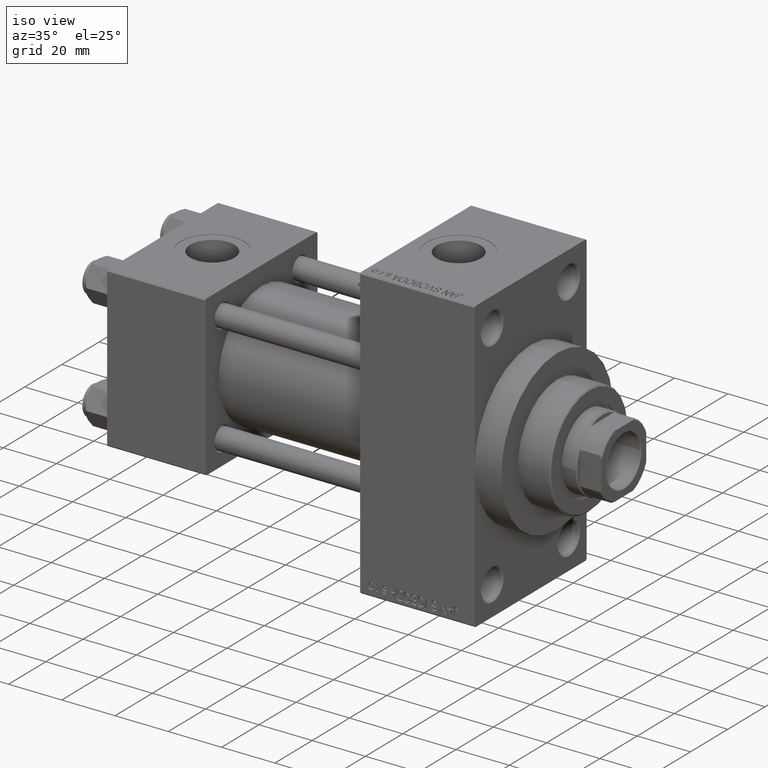
[diagram: clean part render]
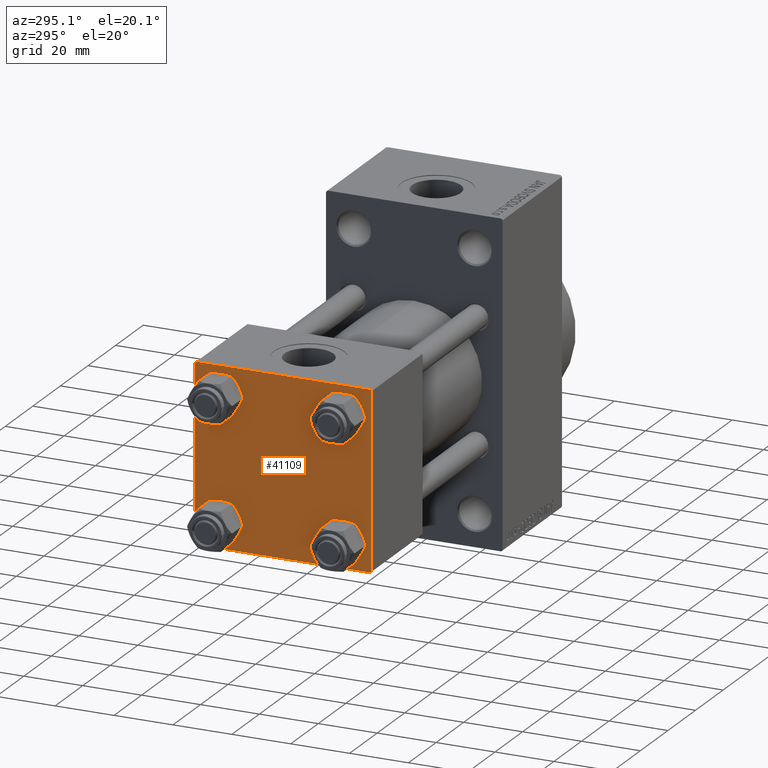
[diagram: tour spotlight — one face highlighted and labeled with its STEP entity id]
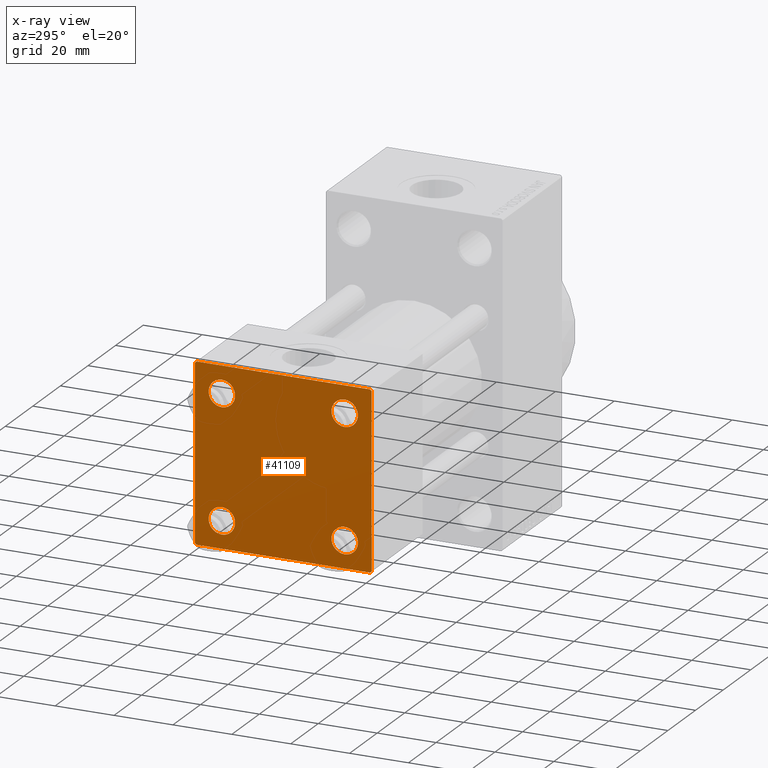
[diagram: x-ray of the same camera — body ghosted, this tour face saturated]
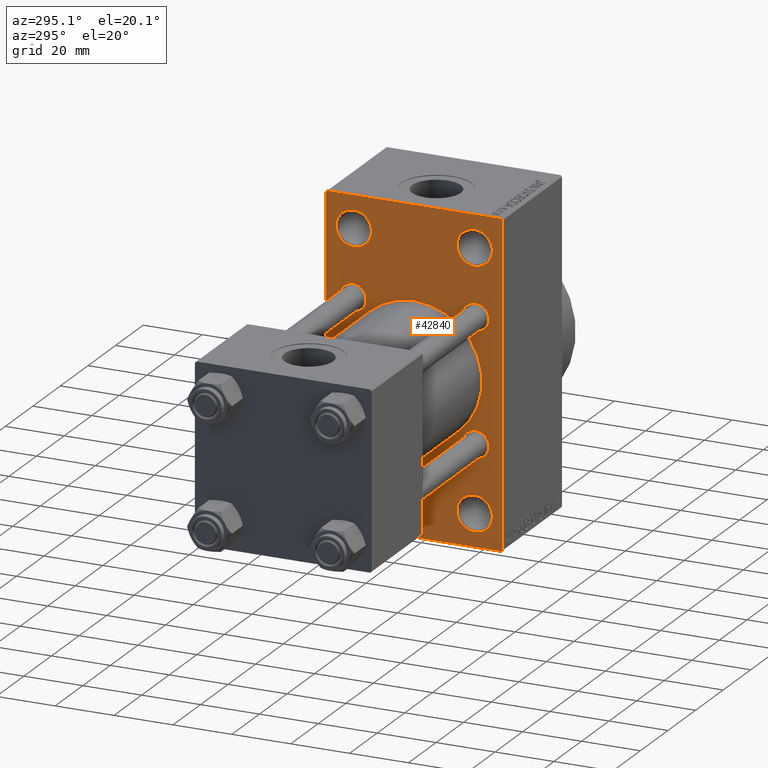
[diagram: tour spotlight — one face highlighted and labeled with its STEP entity id]
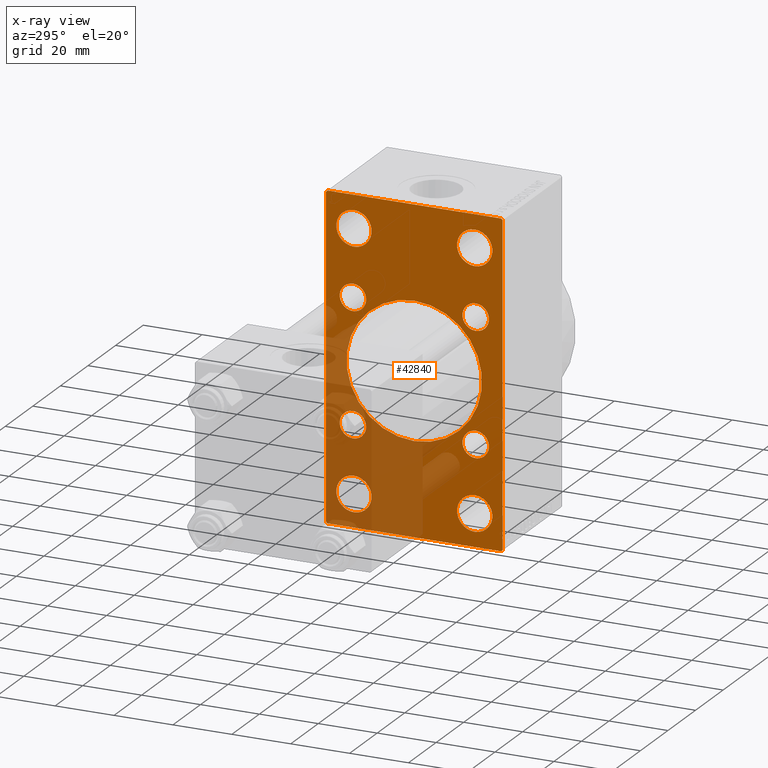
[diagram: x-ray of the same camera — body ghosted, this tour face saturated]
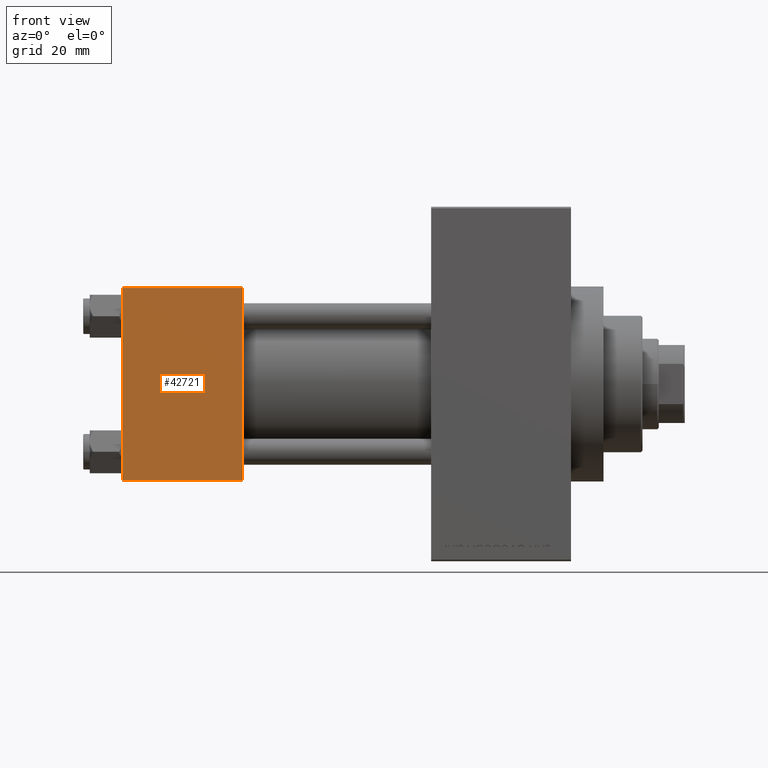
[diagram: tour spotlight — one face highlighted and labeled with its STEP entity id]
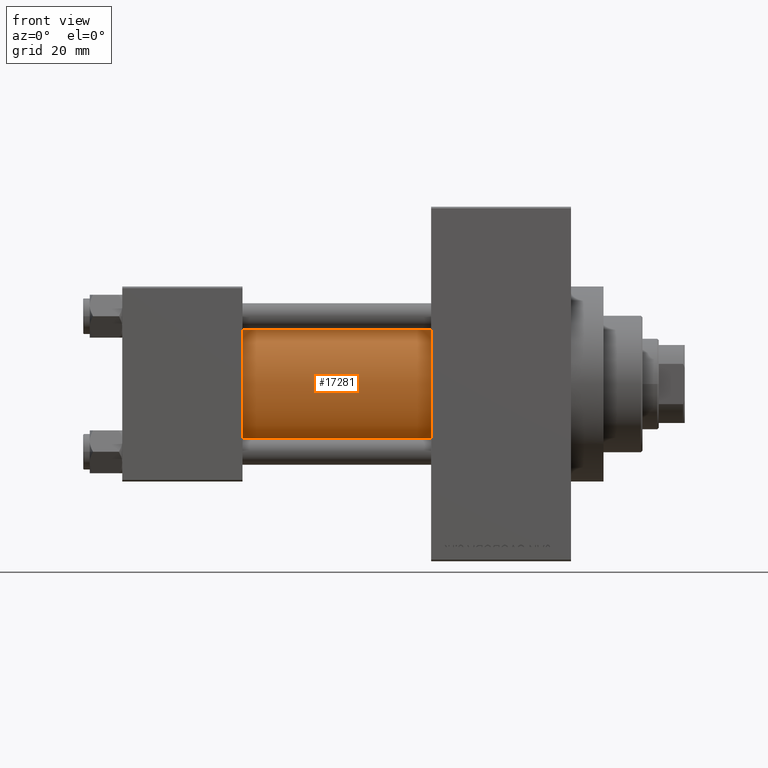
[diagram: tour spotlight — one face highlighted and labeled with its STEP entity id]
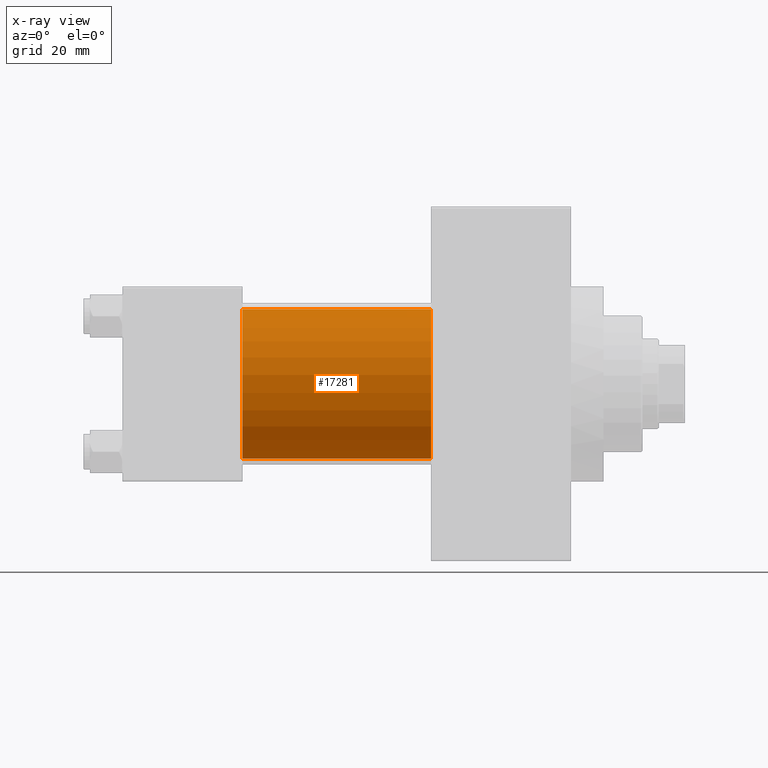
[diagram: x-ray of the same camera — body ghosted, this tour face saturated]
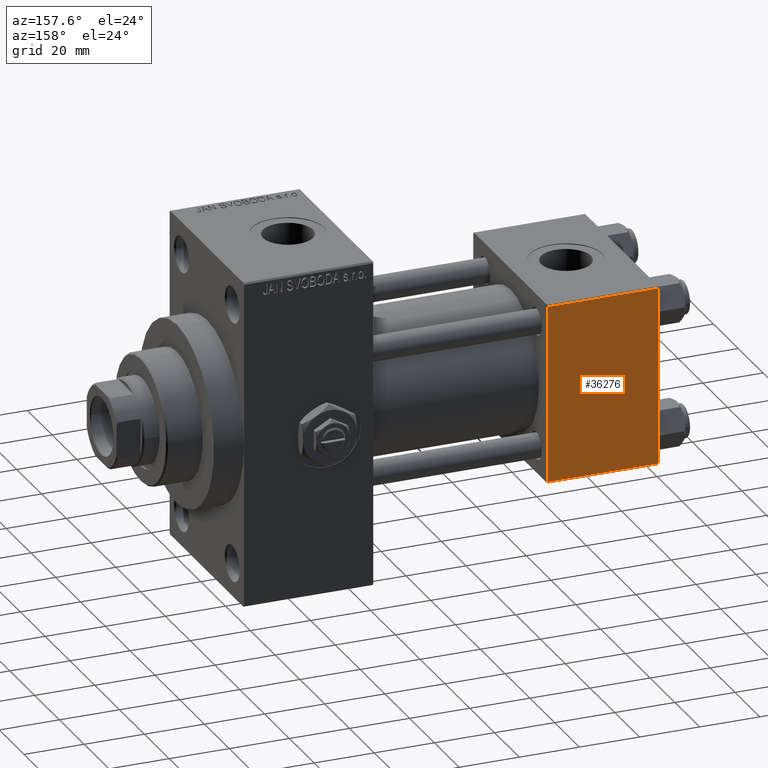
[diagram: tour spotlight — one face highlighted and labeled with its STEP entity id]
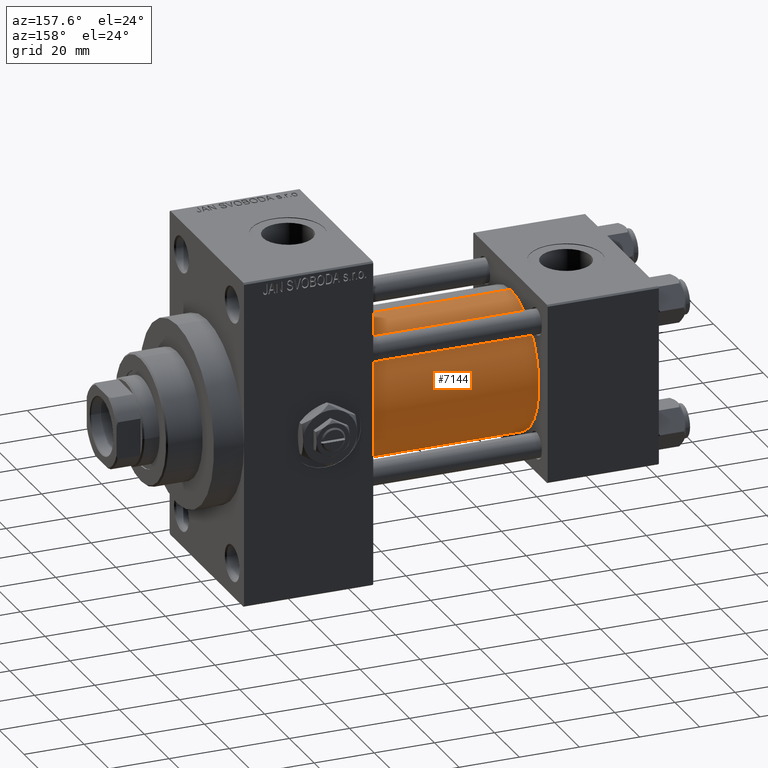
[diagram: tour spotlight — one face highlighted and labeled with its STEP entity id]
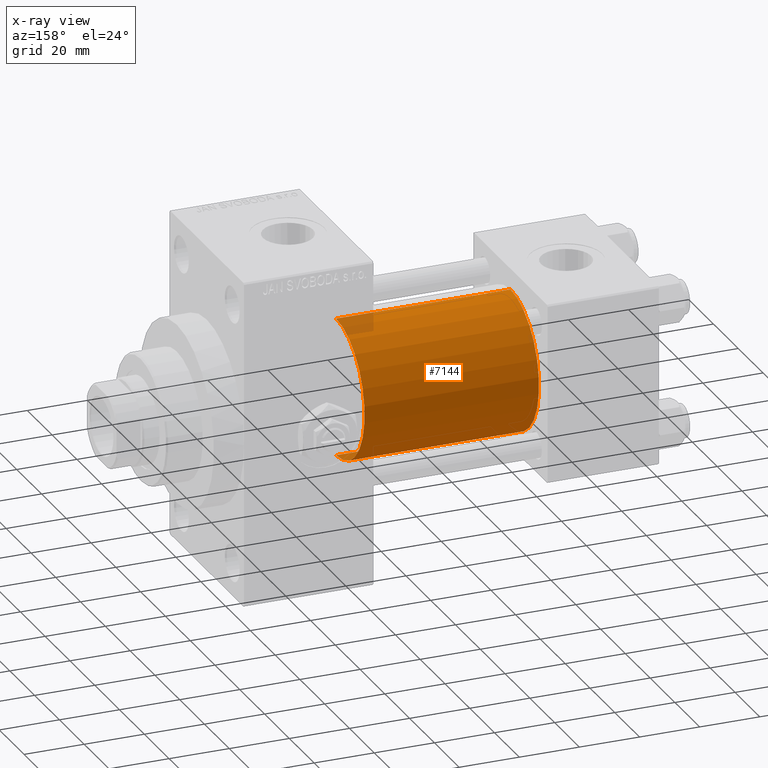
[diagram: x-ray of the same camera — body ghosted, this tour face saturated]
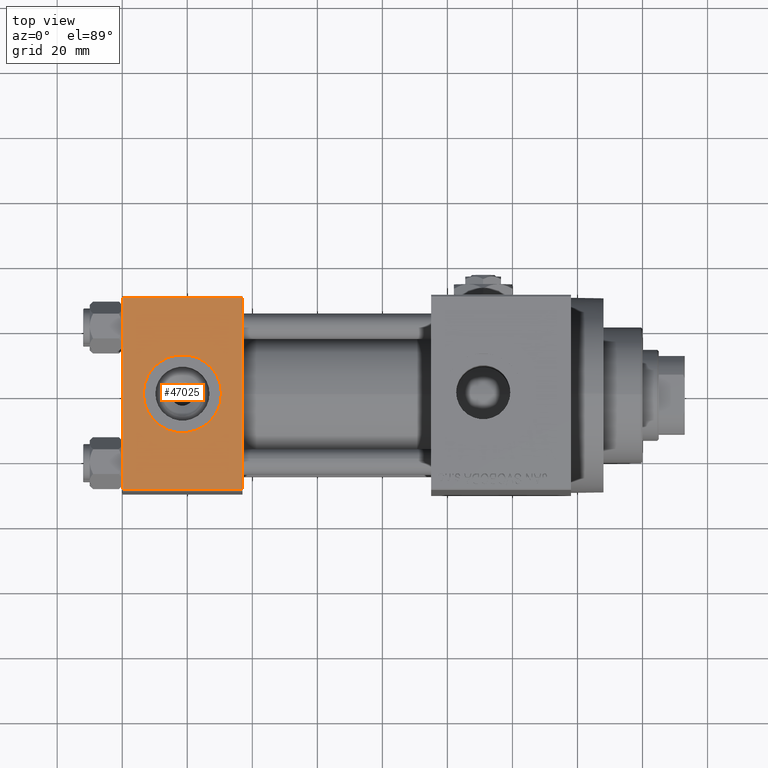
[diagram: tour spotlight — one face highlighted and labeled with its STEP entity id]
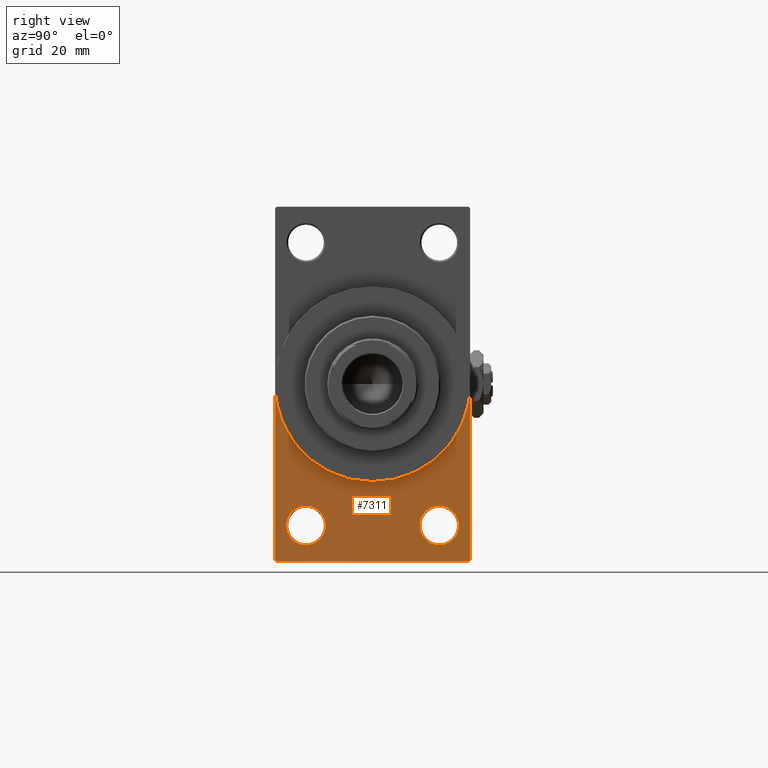
[diagram: tour spotlight — one face highlighted and labeled with its STEP entity id]
A machine part: a face-by-face anatomy tour. The part has 1152 B-rep faces; the first image is the clean iso view, then the 8 largest visible faces are spotlighted one at a time (largest first), each with its STEP entity span.

Face 1 — auxiliary view, entity #41109. An x-ray twin of the same camera follows (body ghosted, this face saturated) — the face is partly hidden behind the body. In plain terms, the highlighted planar face has unit normal (-1, 0, 0).
Definition (entity closure, byte-faithful):
#8 = DIRECTION ( 'NONE',  ( 0.000000000000000000, 0.000000000000000000, 1.000000000000000000 ) ) ;
#229 = DIRECTION ( 'NONE',  ( -0.000000000000000000, 0.7071067811865474617, 0.7071067811865474617 ) ) ;
#269 = VERTEX_POINT ( 'NONE', #12231 ) ;
#340 = EDGE_LOOP ( 'NONE', ( #6798, #29638 ) ) ;
#728 = VERTEX_POINT ( 'NONE', #30200 ) ;
#744 = VECTOR ( 'NONE', #4232, 1000.000000000000000 ) ;
#1440 = EDGE_CURVE ( 'NONE', #48371, #28405, #11402, .T. ) ;
#1532 = FACE_BOUND ( 'NONE', #37950, .T. ) ;
#2015 = DIRECTION ( 'NONE',  ( -0.000000000000000000, 0.000000000000000000, 1.000000000000000000 ) ) ;
#2249 = FACE_OUTER_BOUND ( 'NONE', #15542, .T. ) ;
#2517 = ORIENTED_EDGE ( 'NONE', *, *, #5626, .T. ) ;
#2575 = AXIS2_PLACEMENT_3D ( 'NONE', #27509, #27270, #46084 ) ;
#2740 = CARTESIAN_POINT ( 'NONE',  ( 0.000000000000000000, 29.49999999999997868, -30.00000000000000000 ) ) ;
#3062 = EDGE_LOOP ( 'NONE', ( #18538, #36439 ) ) ;
#3330 = DIRECTION ( 'NONE',  ( 0.000000000000000000, 0.000000000000000000, 1.000000000000000000 ) ) ;
#3491 = DIRECTION ( 'NONE',  ( 0.000000000000000000, 0.000000000000000000, -1.000000000000000000 ) ) ;
#4232 = DIRECTION ( 'NONE',  ( 0.000000000000000000, 0.000000000000000000, -1.000000000000000000 ) ) ;
#4624 = VERTEX_POINT ( 'NONE', #44183 ) ;
#4904 = ORIENTED_EDGE ( 'NONE', *, *, #31365, .T. ) ;
#5626 = EDGE_CURVE ( 'NONE', #47379, #48371, #38264, .T. ) ;
#5989 = DIRECTION ( 'NONE',  ( 0.000000000000000000, -1.000000000000000000, -1.156482317317871725E-16 ) ) ;
#6337 = ORIENTED_EDGE ( 'NONE', *, *, #30780, .T. ) ;
#6798 = ORIENTED_EDGE ( 'NONE', *, *, #26534, .T. ) ;
#6854 = ORIENTED_EDGE ( 'NONE', *, *, #1440, .T. ) ;
#7106 = DIRECTION ( 'NONE',  ( 1.000000000000000000, -0.000000000000000000, 0.000000000000000000 ) ) ;
#7270 = VERTEX_POINT ( 'NONE', #43760 ) ;
#7645 = VERTEX_POINT ( 'NONE', #28602 ) ;
#7708 = VERTEX_POINT ( 'NONE', #45411 ) ;
#8061 = DIRECTION ( 'NONE',  ( 0.000000000000000000, 0.7071067811865474617, -0.7071067811865474617 ) ) ;
#8142 = LINE ( 'NONE', #34144, #33475 ) ;
#8907 = ORIENTED_EDGE ( 'NONE', *, *, #33780, .T. ) ;
#9933 = FACE_BOUND ( 'NONE', #31991, .T. ) ;
#10016 = EDGE_CURVE ( 'NONE', #32651, #38453, #45267, .T. ) ;
#10225 = CARTESIAN_POINT ( 'NONE',  ( 0.000000000000000000, -20.84999999999999076, -20.85000000000000497 ) ) ;
#10360 = CARTESIAN_POINT ( 'NONE',  ( 0.000000000000000000, 20.84999999999999787, -16.34999999999998366 ) ) ;
#10863 = VECTOR ( 'NONE', #14464, 1000.000000000000114 ) ;
#11351 = CARTESIAN_POINT ( 'NONE',  ( 0.000000000000000000, 29.99999999999999289, -30.00000000000000000 ) ) ;
#11402 = LINE ( 'NONE', #29729, #27118 ) ;
#11638 = CARTESIAN_POINT ( 'NONE',  ( 0.000000000000000000, -30.00000000000000000, 29.49999999999999289 ) ) ;
#11990 = CIRCLE ( 'NONE', #12769, 4.500000000000017764 ) ;
#12071 = EDGE_CURVE ( 'NONE', #38453, #7708, #18176, .T. ) ;
#12203 = CARTESIAN_POINT ( 'NONE',  ( 0.000000000000000000, 29.74999999999957723, -29.75000000000040501 ) ) ;
#12231 = CARTESIAN_POINT ( 'NONE',  ( 0.000000000000000000, -20.84999999999999076, 25.35000000000002274 ) ) ;
#12769 = AXIS2_PLACEMENT_3D ( 'NONE', #48543, #45314, #8 ) ;
#12982 = AXIS2_PLACEMENT_3D ( 'NONE', #46617, #42169, #31010 ) ;
#13787 = CIRCLE ( 'NONE', #12982, 4.500000000000017764 ) ;
#14464 = DIRECTION ( 'NONE',  ( 0.000000000000000000, -0.7071067811865474617, 0.7071067811865474617 ) ) ;
#14940 = ORIENTED_EDGE ( 'NONE', *, *, #10016, .T. ) ;
#15044 = ORIENTED_EDGE ( 'NONE', *, *, #21459, .T. ) ;
#15359 = VERTEX_POINT ( 'NONE', #48905 ) ;
#15542 = EDGE_LOOP ( 'NONE', ( #6854, #6337, #14940, #35891, #30503, #46316, #28504, #2517 ) ) ;
#15835 = DIRECTION ( 'NONE',  ( 1.000000000000000000, -0.000000000000000000, 0.000000000000000000 ) ) ;
#15869 = AXIS2_PLACEMENT_3D ( 'NONE', #45555, #15835, #30682 ) ;
#16691 = CIRCLE ( 'NONE', #30917, 4.500000000000017764 ) ;
#16873 = DIRECTION ( 'NONE',  ( -1.000000000000000000, 0.000000000000000000, -0.000000000000000000 ) ) ;
#17602 = CIRCLE ( 'NONE', #2575, 4.500000000000017764 ) ;
#17960 = DIRECTION ( 'NONE',  ( 0.000000000000000000, 0.000000000000000000, 1.000000000000000000 ) ) ;
#18176 = LINE ( 'NONE', #32283, #10863 ) ;
#18210 = DIRECTION ( 'NONE',  ( 1.000000000000000000, -0.000000000000000000, 0.000000000000000000 ) ) ;
#18538 = ORIENTED_EDGE ( 'NONE', *, *, #45417, .T. ) ;
#19569 = LINE ( 'NONE', #41862, #744 ) ;
#20288 = CARTESIAN_POINT ( 'NONE',  ( 0.000000000000000000, 29.49999999999999289, 30.00000000000000000 ) ) ;
#20723 = AXIS2_PLACEMENT_3D ( 'NONE', #48691, #7106, #29392 ) ;
#20871 = EDGE_CURVE ( 'NONE', #25556, #20876, #16691, .T. ) ;
#20876 = VERTEX_POINT ( 'NONE', #29107 ) ;
#21459 = EDGE_CURVE ( 'NONE', #269, #728, #11990, .T. ) ;
#21523 = VERTEX_POINT ( 'NONE', #11638 ) ;
#21626 = DIRECTION ( 'NONE',  ( 0.000000000000000000, 0.000000000000000000, 1.000000000000000000 ) ) ;
#22110 = AXIS2_PLACEMENT_3D ( 'NONE', #40950, #37238, #3330 ) ;
#22181 = CARTESIAN_POINT ( 'NONE',  ( 0.000000000000000000, 29.99999999999999289, -29.50000000000000000 ) ) ;
#22747 = DIRECTION ( 'NONE',  ( 0.000000000000000000, -1.000000000000000000, -1.156482317317871725E-16 ) ) ;
#23680 = CIRCLE ( 'NONE', #22110, 4.500000000000017764 ) ;
#24304 = PLANE ( 'NONE',  #30839 ) ;
#25396 = CARTESIAN_POINT ( 'NONE',  ( 0.000000000000000000, 20.84999999999999787, 20.85000000000000142 ) ) ;
#25556 = VERTEX_POINT ( 'NONE', #40761 ) ;
#25820 = DIRECTION ( 'NONE',  ( 1.000000000000000000, -0.000000000000000000, 0.000000000000000000 ) ) ;
#26534 = EDGE_CURVE ( 'NONE', #20876, #25556, #42064, .T. ) ;
#27118 = VECTOR ( 'NONE', #3491, 1000.000000000000000 ) ;
#27270 = DIRECTION ( 'NONE',  ( 1.000000000000000000, -0.000000000000000000, 0.000000000000000000 ) ) ;
#27509 = CARTESIAN_POINT ( 'NONE',  ( 0.000000000000000000, 20.84999999999999787, -20.85000000000000142 ) ) ;
#28405 = VERTEX_POINT ( 'NONE', #22181 ) ;
#28504 = ORIENTED_EDGE ( 'NONE', *, *, #37489, .F. ) ;
#28602 = CARTESIAN_POINT ( 'NONE',  ( 0.000000000000000000, -20.84999999999999076, -16.34999999999998721 ) ) ;
#29107 = CARTESIAN_POINT ( 'NONE',  ( 0.000000000000000000, 20.84999999999999787, 25.35000000000001918 ) ) ;
#29392 = DIRECTION ( 'NONE',  ( 0.000000000000000000, 0.000000000000000000, 1.000000000000000000 ) ) ;
#29638 = ORIENTED_EDGE ( 'NONE', *, *, #20871, .T. ) ;
#29729 = CARTESIAN_POINT ( 'NONE',  ( 0.000000000000000000, 29.99999999999999289, 30.00000000000000000 ) ) ;
#30200 = CARTESIAN_POINT ( 'NONE',  ( 0.000000000000000000, -20.84999999999999076, 16.34999999999998721 ) ) ;
#30503 = ORIENTED_EDGE ( 'NONE', *, *, #38629, .F. ) ;
#30682 = DIRECTION ( 'NONE',  ( 0.000000000000000000, 0.000000000000000000, 1.000000000000000000 ) ) ;
#30780 = EDGE_CURVE ( 'NONE', #28405, #32651, #46111, .T. ) ;
#30839 = AXIS2_PLACEMENT_3D ( 'NONE', #35681, #16873, #2015 ) ;
#30917 = AXIS2_PLACEMENT_3D ( 'NONE', #25396, #18210, #17960 ) ;
#31010 = DIRECTION ( 'NONE',  ( 0.000000000000000000, 0.000000000000000000, 1.000000000000000000 ) ) ;
#31365 = EDGE_CURVE ( 'NONE', #7645, #7270, #13787, .T. ) ;
#31736 = CARTESIAN_POINT ( 'NONE',  ( 0.000000000000000000, 29.99999999999999289, 30.00000000000000000 ) ) ;
#31991 = EDGE_LOOP ( 'NONE', ( #4904, #8907 ) ) ;
#32223 = CARTESIAN_POINT ( 'NONE',  ( 0.000000000000000000, -29.50000000000000000, -30.00000000000000711 ) ) ;
#32283 = CARTESIAN_POINT ( 'NONE',  ( 0.000000000000000000, -29.75000000000001066, -29.75000000000001066 ) ) ;
#32469 = ORIENTED_EDGE ( 'NONE', *, *, #41392, .T. ) ;
#32651 = VERTEX_POINT ( 'NONE', #2740 ) ;
#33475 = VECTOR ( 'NONE', #229, 1000.000000000000114 ) ;
#33780 = EDGE_CURVE ( 'NONE', #7270, #7645, #37890, .T. ) ;
#34144 = CARTESIAN_POINT ( 'NONE',  ( -0.000000000000000000, -29.74999999999999645, 29.74999999999999645 ) ) ;
#35622 = CIRCLE ( 'NONE', #15869, 4.500000000000017764 ) ;
#35681 = CARTESIAN_POINT ( 'NONE',  ( 0.000000000000000000, 0.000000000000000000, 0.000000000000000000 ) ) ;
#35891 = ORIENTED_EDGE ( 'NONE', *, *, #12071, .T. ) ;
#36439 = ORIENTED_EDGE ( 'NONE', *, *, #38186, .T. ) ;
#37238 = DIRECTION ( 'NONE',  ( 1.000000000000000000, -0.000000000000000000, 0.000000000000000000 ) ) ;
#37489 = EDGE_CURVE ( 'NONE', #47379, #15359, #47088, .T. ) ;
#37890 = CIRCLE ( 'NONE', #46588, 4.500000000000017764 ) ;
#37950 = EDGE_LOOP ( 'NONE', ( #15044, #32469 ) ) ;
#38186 = EDGE_CURVE ( 'NONE', #4624, #47453, #23680, .T. ) ;
#38264 = LINE ( 'NONE', #41978, #47935 ) ;
#38453 = VERTEX_POINT ( 'NONE', #32223 ) ;
#38629 = EDGE_CURVE ( 'NONE', #21523, #7708, #19569, .T. ) ;
#39548 = VECTOR ( 'NONE', #5989, 1000.000000000000000 ) ;
#39642 = FACE_BOUND ( 'NONE', #340, .T. ) ;
#40055 = VECTOR ( 'NONE', #22747, 1000.000000000000000 ) ;
#40761 = CARTESIAN_POINT ( 'NONE',  ( 0.000000000000000000, 20.84999999999999787, 16.34999999999998366 ) ) ;
#40950 = CARTESIAN_POINT ( 'NONE',  ( 0.000000000000000000, 20.84999999999999787, -20.85000000000000142 ) ) ;
#41109 = ADVANCED_FACE ( 'NONE', ( #1532, #9933, #47560, #39642, #2249 ), #24304, .T. ) ;
#41392 = EDGE_CURVE ( 'NONE', #728, #269, #35622, .T. ) ;
#41862 = CARTESIAN_POINT ( 'NONE',  ( 0.000000000000000000, -30.00000000000000000, 29.99999999999999289 ) ) ;
#41978 = CARTESIAN_POINT ( 'NONE',  ( 0.000000000000000000, 29.74999999999999645, 29.74999999999999645 ) ) ;
#42064 = CIRCLE ( 'NONE', #20723, 4.500000000000017764 ) ;
#42169 = DIRECTION ( 'NONE',  ( 1.000000000000000000, -0.000000000000000000, 0.000000000000000000 ) ) ;
#42391 = DIRECTION ( 'NONE',  ( -0.000000000000000000, -0.7071067811865574537, -0.7071067811865376918 ) ) ;
#43010 = VECTOR ( 'NONE', #42391, 999.9999999999998863 ) ;
#43760 = CARTESIAN_POINT ( 'NONE',  ( 0.000000000000000000, -20.84999999999999076, -25.35000000000002274 ) ) ;
#44183 = CARTESIAN_POINT ( 'NONE',  ( 0.000000000000000000, 20.84999999999999787, -25.35000000000001918 ) ) ;
#45267 = LINE ( 'NONE', #11351, #40055 ) ;
#45314 = DIRECTION ( 'NONE',  ( 1.000000000000000000, -0.000000000000000000, 0.000000000000000000 ) ) ;
#45411 = CARTESIAN_POINT ( 'NONE',  ( 0.000000000000000000, -30.00000000000000000, -29.50000000000001776 ) ) ;
#45417 = EDGE_CURVE ( 'NONE', #47453, #4624, #17602, .T. ) ;
#45555 = CARTESIAN_POINT ( 'NONE',  ( 0.000000000000000000, -20.84999999999999076, 20.85000000000000497 ) ) ;
#46084 = DIRECTION ( 'NONE',  ( 0.000000000000000000, 0.000000000000000000, 1.000000000000000000 ) ) ;
#46111 = LINE ( 'NONE', #12203, #43010 ) ;
#46316 = ORIENTED_EDGE ( 'NONE', *, *, #47990, .T. ) ;
#46588 = AXIS2_PLACEMENT_3D ( 'NONE', #10225, #25820, #21626 ) ;
#46617 = CARTESIAN_POINT ( 'NONE',  ( 0.000000000000000000, -20.84999999999999076, -20.85000000000000497 ) ) ;
#47088 = LINE ( 'NONE', #31736, #39548 ) ;
#47379 = VERTEX_POINT ( 'NONE', #20288 ) ;
#47453 = VERTEX_POINT ( 'NONE', #10360 ) ;
#47560 = FACE_BOUND ( 'NONE', #3062, .T. ) ;
#47935 = VECTOR ( 'NONE', #8061, 1000.000000000000114 ) ;
#47990 = EDGE_CURVE ( 'NONE', #21523, #15359, #8142, .T. ) ;
#48332 = CARTESIAN_POINT ( 'NONE',  ( 0.000000000000000000, 29.99999999999999289, 29.50000000000000000 ) ) ;
#48371 = VERTEX_POINT ( 'NONE', #48332 ) ;
#48543 = CARTESIAN_POINT ( 'NONE',  ( 0.000000000000000000, -20.84999999999999076, 20.85000000000000497 ) ) ;
#48691 = CARTESIAN_POINT ( 'NONE',  ( 0.000000000000000000, 20.84999999999999787, 20.85000000000000142 ) ) ;
#48905 = CARTESIAN_POINT ( 'NONE',  ( 0.000000000000000000, -29.49999999999998579, 29.99999999999999289 ) ) ;

Face 2 — auxiliary view, entity #42840. An x-ray twin of the same camera follows (body ghosted, this face saturated) — the face is partly hidden behind the body. In plain terms, the highlighted planar face has unit normal (-1, 0, 0).
Definition (entity closure, byte-faithful):
#64 = DIRECTION ( 'NONE',  ( 0.000000000000000000, -1.000000000000000000, 1.156482317317871478E-16 ) ) ;
#74 = CIRCLE ( 'NONE', #20612, 4.500000000000007105 ) ;
#219 = AXIS2_PLACEMENT_3D ( 'NONE', #43156, #42915, #42668 ) ;
#331 = EDGE_LOOP ( 'NONE', ( #13556, #45034 ) ) ;
#412 = CARTESIAN_POINT ( 'NONE',  ( 95.00000000000000000, -2.602085213965210642E-15, 0.000000000000000000 ) ) ;
#955 = VERTEX_POINT ( 'NONE', #46639 ) ;
#1030 = VECTOR ( 'NONE', #64, 1000.000000000000000 ) ;
#1102 = CIRCLE ( 'NONE', #31125, 5.999999999999894307 ) ;
#1121 = ORIENTED_EDGE ( 'NONE', *, *, #38319, .T. ) ;
#1311 = DIRECTION ( 'NONE',  ( 0.000000000000000000, 0.000000000000000000, 1.000000000000000000 ) ) ;
#1541 = CARTESIAN_POINT ( 'NONE',  ( 95.00000000000000000, 20.84999999999999787, -20.85000000000000142 ) ) ;
#2674 = CARTESIAN_POINT ( 'NONE',  ( 95.00000000000000000, 29.99999999999999645, -54.49999999999999289 ) ) ;
#3609 = EDGE_LOOP ( 'NONE', ( #21831, #40137, #9634, #32163, #24899, #39225, #10023, #20995 ) ) ;
#3646 = FACE_OUTER_BOUND ( 'NONE', #3609, .T. ) ;
#3720 = CARTESIAN_POINT ( 'NONE',  ( 95.00000000000000000, -20.84999999999999076, 20.85000000000000497 ) ) ;
#3790 = ORIENTED_EDGE ( 'NONE', *, *, #44581, .T. ) ;
#4071 = CIRCLE ( 'NONE', #31734, 5.999999999999894307 ) ;
#4171 = VECTOR ( 'NONE', #43938, 1000.000000000000000 ) ;
#4271 = DIRECTION ( 'NONE',  ( 0.000000000000000000, 0.000000000000000000, 1.000000000000000000 ) ) ;
#4370 = CARTESIAN_POINT ( 'NONE',  ( 95.00000000000000000, 42.00000000000082423, 41.99999999999849365 ) ) ;
#4769 = DIRECTION ( 'NONE',  ( 1.000000000000000000, 0.000000000000000000, 0.000000000000000000 ) ) ;
#5137 = EDGE_LOOP ( 'NONE', ( #17438, #21836 ) ) ;
#5311 = VERTEX_POINT ( 'NONE', #38321 ) ;
#5409 = EDGE_CURVE ( 'NONE', #17117, #12504, #32591, .T. ) ;
#5771 = CARTESIAN_POINT ( 'NONE',  ( 95.00000000000000000, -20.50000000000000000, 37.50000000000009948 ) ) ;
#6308 = DIRECTION ( 'NONE',  ( 1.000000000000000000, -0.000000000000000000, 0.000000000000000000 ) ) ;
#6378 = CARTESIAN_POINT ( 'NONE',  ( 95.00000000000000000, 0.000000000000000000, 0.000000000000000000 ) ) ;
#6671 = EDGE_CURVE ( 'NONE', #7463, #22988, #21083, .T. ) ;
#6886 = DIRECTION ( 'NONE',  ( 0.000000000000000000, -0.7071067811865352493, 0.7071067811865597852 ) ) ;
#7359 = FACE_BOUND ( 'NONE', #42449, .T. ) ;
#7463 = VERTEX_POINT ( 'NONE', #44981 ) ;
#8058 = AXIS2_PLACEMENT_3D ( 'NONE', #20209, #26727, #26492 ) ;
#8099 = CIRCLE ( 'NONE', #219, 5.999999999999894307 ) ;
#8505 = EDGE_CURVE ( 'NONE', #18807, #955, #10093, .T. ) ;
#8805 = VECTOR ( 'NONE', #15561, 1000.000000000000000 ) ;
#9171 = CARTESIAN_POINT ( 'NONE',  ( 95.00000000000000000, -20.50000000000000000, 49.49999999999989342 ) ) ;
#9634 = ORIENTED_EDGE ( 'NONE', *, *, #42486, .F. ) ;
#9729 = VECTOR ( 'NONE', #16773, 1000.000000000000114 ) ;
#10023 = ORIENTED_EDGE ( 'NONE', *, *, #27741, .T. ) ;
#10093 = CIRCLE ( 'NONE', #25928, 4.500000000000007105 ) ;
#10585 = FACE_BOUND ( 'NONE', #30402, .T. ) ;
#11129 = CARTESIAN_POINT ( 'NONE',  ( 95.00000000000000000, 29.99999999999999645, 53.99999999999999289 ) ) ;
#11227 = ORIENTED_EDGE ( 'NONE', *, *, #27193, .T. ) ;
#11258 = ORIENTED_EDGE ( 'NONE', *, *, #41876, .T. ) ;
#11653 = VERTEX_POINT ( 'NONE', #24205 ) ;
#11845 = VECTOR ( 'NONE', #36090, 1000.000000000000000 ) ;
#11937 = VERTEX_POINT ( 'NONE', #15979 ) ;
#12224 = EDGE_CURVE ( 'NONE', #27201, #39539, #40121, .T. ) ;
#12279 = EDGE_CURVE ( 'NONE', #22988, #7463, #14829, .T. ) ;
#12292 = LINE ( 'NONE', #4370, #41298 ) ;
#12400 = CARTESIAN_POINT ( 'NONE',  ( 95.00000000000000000, 20.84999999999999787, 25.35000000000000853 ) ) ;
#12448 = DIRECTION ( 'NONE',  ( 1.000000000000000000, -0.000000000000000000, 0.000000000000000000 ) ) ;
#12504 = VERTEX_POINT ( 'NONE', #23239 ) ;
#12559 = DIRECTION ( 'NONE',  ( 1.000000000000000000, -0.000000000000000000, 0.000000000000000000 ) ) ;
#12838 = CIRCLE ( 'NONE', #47605, 5.999999999999894307 ) ;
#12958 = EDGE_CURVE ( 'NONE', #13342, #11937, #18036, .T. ) ;
#13342 = VERTEX_POINT ( 'NONE', #20816 ) ;
#13386 = EDGE_CURVE ( 'NONE', #11653, #40594, #25987, .T. ) ;
#13413 = VERTEX_POINT ( 'NONE', #11129 ) ;
#13556 = ORIENTED_EDGE ( 'NONE', *, *, #12279, .T. ) ;
#13915 = DIRECTION ( 'NONE',  ( 0.000000000000000000, 0.000000000000000000, 1.000000000000000000 ) ) ;
#14023 = VERTEX_POINT ( 'NONE', #26730 ) ;
#14287 = FACE_BOUND ( 'NONE', #38731, .T. ) ;
#14397 = VERTEX_POINT ( 'NONE', #34583 ) ;
#14575 = CIRCLE ( 'NONE', #26447, 4.500000000000007105 ) ;
#14782 = FACE_BOUND ( 'NONE', #5137, .T. ) ;
#14829 = CIRCLE ( 'NONE', #23515, 4.500000000000007105 ) ;
#14962 = AXIS2_PLACEMENT_3D ( 'NONE', #412, #22942, #26652 ) ;
#14997 = AXIS2_PLACEMENT_3D ( 'NONE', #38927, #12448, #20123 ) ;
#15004 = CARTESIAN_POINT ( 'NONE',  ( 95.00000000000000000, -20.50000000000000000, 43.50000000000000000 ) ) ;
#15167 = CARTESIAN_POINT ( 'NONE',  ( 95.00000000000000000, -20.84999999999999076, 25.35000000000001208 ) ) ;
#15188 = ORIENTED_EDGE ( 'NONE', *, *, #36640, .T. ) ;
#15561 = DIRECTION ( 'NONE',  ( 0.000000000000000000, 0.000000000000000000, -1.000000000000000000 ) ) ;
#15567 = AXIS2_PLACEMENT_3D ( 'NONE', #46926, #6308, #39978 ) ;
#15620 = ORIENTED_EDGE ( 'NONE', *, *, #46017, .T. ) ;
#15979 = CARTESIAN_POINT ( 'NONE',  ( 95.00000000000000000, 20.50000000000000000, 37.50000000000009948 ) ) ;
#16390 = EDGE_LOOP ( 'NONE', ( #3790, #15188 ) ) ;
#16468 = ORIENTED_EDGE ( 'NONE', *, *, #12224, .T. ) ;
#16616 = AXIS2_PLACEMENT_3D ( 'NONE', #42509, #12559, #19743 ) ;
#16773 = DIRECTION ( 'NONE',  ( -0.000000000000000000, -0.7071067811865474617, -0.7071067811865474617 ) ) ;
#16876 = CARTESIAN_POINT ( 'NONE',  ( 95.00000000000000000, 20.84999999999999787, 20.85000000000000142 ) ) ;
#17117 = VERTEX_POINT ( 'NONE', #28886 ) ;
#17438 = ORIENTED_EDGE ( 'NONE', *, *, #8505, .T. ) ;
#17548 = ORIENTED_EDGE ( 'NONE', *, *, #12958, .T. ) ;
#17879 = CARTESIAN_POINT ( 'NONE',  ( 95.00000000000000000, 20.50000000000000000, -43.50000000000000000 ) ) ;
#18036 = CIRCLE ( 'NONE', #30676, 5.999999999999894307 ) ;
#18486 = DIRECTION ( 'NONE',  ( 0.000000000000000000, 0.000000000000000000, 1.000000000000000000 ) ) ;
#18515 = CARTESIAN_POINT ( 'NONE',  ( 95.00000000000000000, 20.84999999999999787, -25.35000000000000853 ) ) ;
#18807 = VERTEX_POINT ( 'NONE', #12400 ) ;
#19010 = DIRECTION ( 'NONE',  ( 1.000000000000000000, -0.000000000000000000, 0.000000000000000000 ) ) ;
#19743 = DIRECTION ( 'NONE',  ( 0.000000000000000000, 0.000000000000000000, 1.000000000000000000 ) ) ;
#19951 = DIRECTION ( 'NONE',  ( -1.000000000000000000, 0.000000000000000000, -0.000000000000000000 ) ) ;
#20047 = AXIS2_PLACEMENT_3D ( 'NONE', #37817, #19010, #48723 ) ;
#20105 = DIRECTION ( 'NONE',  ( 1.000000000000000000, -0.000000000000000000, 0.000000000000000000 ) ) ;
#20122 = CARTESIAN_POINT ( 'NONE',  ( 95.00000000000000000, -20.84999999999999076, -20.85000000000000497 ) ) ;
#20123 = DIRECTION ( 'NONE',  ( 0.000000000000000000, 0.000000000000000000, 1.000000000000000000 ) ) ;
#20209 = CARTESIAN_POINT ( 'NONE',  ( 95.00000000000000000, -20.50000000000000000, -43.50000000000000000 ) ) ;
#20538 = EDGE_CURVE ( 'NONE', #44262, #14023, #41286, .T. ) ;
#20612 = AXIS2_PLACEMENT_3D ( 'NONE', #1541, #26800, #27532 ) ;
#20816 = CARTESIAN_POINT ( 'NONE',  ( 95.00000000000000000, 20.50000000000000000, 49.49999999999989342 ) ) ;
#20995 = ORIENTED_EDGE ( 'NONE', *, *, #5409, .T. ) ;
#21083 = CIRCLE ( 'NONE', #15567, 4.500000000000007105 ) ;
#21176 = LINE ( 'NONE', #40474, #4171 ) ;
#21501 = CARTESIAN_POINT ( 'NONE',  ( 95.00000000000000000, -20.84999999999999076, 20.85000000000000497 ) ) ;
#21536 = CIRCLE ( 'NONE', #8058, 5.999999999999894307 ) ;
#21600 = DIRECTION ( 'NONE',  ( 1.000000000000000000, -0.000000000000000000, 0.000000000000000000 ) ) ;
#21749 = DIRECTION ( 'NONE',  ( 0.000000000000000000, 0.000000000000000000, 1.000000000000000000 ) ) ;
#21831 = ORIENTED_EDGE ( 'NONE', *, *, #39370, .T. ) ;
#21836 = ORIENTED_EDGE ( 'NONE', *, *, #28976, .T. ) ;
#21942 = EDGE_CURVE ( 'NONE', #46902, #47028, #4071, .T. ) ;
#22353 = CARTESIAN_POINT ( 'NONE',  ( 95.00000000000000000, 20.84999999999999787, -16.34999999999999432 ) ) ;
#22557 = ORIENTED_EDGE ( 'NONE', *, *, #21942, .T. ) ;
#22679 = EDGE_CURVE ( 'NONE', #14397, #13413, #12292, .T. ) ;
#22942 = DIRECTION ( 'NONE',  ( 1.000000000000000000, 0.000000000000000000, 0.000000000000000000 ) ) ;
#22988 = VERTEX_POINT ( 'NONE', #23138 ) ;
#23138 = CARTESIAN_POINT ( 'NONE',  ( 95.00000000000000000, -20.84999999999999076, -16.34999999999999787 ) ) ;
#23239 = CARTESIAN_POINT ( 'NONE',  ( 95.00000000000000000, 29.49999999999999645, -54.49999999999999289 ) ) ;
#23263 = DIRECTION ( 'NONE',  ( 1.000000000000000000, -0.000000000000000000, 0.000000000000000000 ) ) ;
#23515 = AXIS2_PLACEMENT_3D ( 'NONE', #20122, #35216, #1311 ) ;
#23670 = DIRECTION ( 'NONE',  ( 0.000000000000000000, 0.7071067811865279218, -0.7071067811865671127 ) ) ;
#24205 = CARTESIAN_POINT ( 'NONE',  ( 95.00000000000000000, -30.00000000000000000, 53.99999999999997158 ) ) ;
#24322 = DIRECTION ( 'NONE',  ( 0.000000000000000000, 0.000000000000000000, -1.000000000000000000 ) ) ;
#24899 = ORIENTED_EDGE ( 'NONE', *, *, #46997, .F. ) ;
#25928 = AXIS2_PLACEMENT_3D ( 'NONE', #16876, #47076, #42616 ) ;
#25987 = LINE ( 'NONE', #33906, #29884 ) ;
#26133 = CIRCLE ( 'NONE', #27718, 5.999999999999894307 ) ;
#26156 = VERTEX_POINT ( 'NONE', #44784 ) ;
#26309 = AXIS2_PLACEMENT_3D ( 'NONE', #21501, #47246, #21749 ) ;
#26447 = AXIS2_PLACEMENT_3D ( 'NONE', #3720, #23263, #38353 ) ;
#26492 = DIRECTION ( 'NONE',  ( 0.000000000000000000, 0.000000000000000000, 1.000000000000000000 ) ) ;
#26652 = DIRECTION ( 'NONE',  ( 0.000000000000000000, 0.000000000000000000, -1.000000000000000000 ) ) ;
#26727 = DIRECTION ( 'NONE',  ( 1.000000000000000000, -0.000000000000000000, 0.000000000000000000 ) ) ;
#26730 = CARTESIAN_POINT ( 'NONE',  ( 95.00000000000000000, -30.00000000000000000, -53.99999999999998579 ) ) ;
#26800 = DIRECTION ( 'NONE',  ( 1.000000000000000000, -0.000000000000000000, 0.000000000000000000 ) ) ;
#27193 = EDGE_CURVE ( 'NONE', #47028, #46902, #12838, .T. ) ;
#27201 = VERTEX_POINT ( 'NONE', #33471 ) ;
#27284 = LINE ( 'NONE', #41420, #1030 ) ;
#27532 = DIRECTION ( 'NONE',  ( 0.000000000000000000, 0.000000000000000000, 1.000000000000000000 ) ) ;
#27718 = AXIS2_PLACEMENT_3D ( 'NONE', #15004, #29626, #18486 ) ;
#27741 = EDGE_CURVE ( 'NONE', #13413, #17117, #21176, .T. ) ;
#27754 = VECTOR ( 'NONE', #6886, 1000.000000000000000 ) ;
#27807 = CARTESIAN_POINT ( 'NONE',  ( 95.00000000000000000, 20.50000000000000000, 43.50000000000000000 ) ) ;
#28065 = EDGE_CURVE ( 'NONE', #5311, #40193, #32616, .T. ) ;
#28886 = CARTESIAN_POINT ( 'NONE',  ( 95.00000000000000000, 29.99999999999999645, -53.99999999999999289 ) ) ;
#28976 = EDGE_CURVE ( 'NONE', #955, #18807, #46905, .T. ) ;
#29236 = EDGE_LOOP ( 'NONE', ( #11227, #22557 ) ) ;
#29398 = FACE_BOUND ( 'NONE', #30102, .T. ) ;
#29411 = CARTESIAN_POINT ( 'NONE',  ( 95.00000000000000000, -42.00000000000051159, -41.99999999999905498 ) ) ;
#29626 = DIRECTION ( 'NONE',  ( 1.000000000000000000, -0.000000000000000000, 0.000000000000000000 ) ) ;
#29664 = EDGE_CURVE ( 'NONE', #34244, #47690, #1102, .T. ) ;
#29884 = VECTOR ( 'NONE', #33664, 1000.000000000000114 ) ;
#30102 = EDGE_LOOP ( 'NONE', ( #39300, #46667 ) ) ;
#30402 = EDGE_LOOP ( 'NONE', ( #16468, #34662 ) ) ;
#30419 = LINE ( 'NONE', #42527, #8805 ) ;
#30676 = AXIS2_PLACEMENT_3D ( 'NONE', #27807, #31503, #31993 ) ;
#30815 = EDGE_CURVE ( 'NONE', #40193, #5311, #14575, .T. ) ;
#31103 = CARTESIAN_POINT ( 'NONE',  ( 95.00000000000000000, -29.49999999999997513, 54.50000000000000000 ) ) ;
#31125 = AXIS2_PLACEMENT_3D ( 'NONE', #38664, #20105, #4271 ) ;
#31503 = DIRECTION ( 'NONE',  ( 1.000000000000000000, -0.000000000000000000, 0.000000000000000000 ) ) ;
#31734 = AXIS2_PLACEMENT_3D ( 'NONE', #17879, #32977, #48077 ) ;
#31993 = DIRECTION ( 'NONE',  ( 0.000000000000000000, 0.000000000000000000, 1.000000000000000000 ) ) ;
#32163 = ORIENTED_EDGE ( 'NONE', *, *, #13386, .T. ) ;
#32371 = CARTESIAN_POINT ( 'NONE',  ( 95.00000000000000000, 2.146024240737012665E-16, -23.00000000000000000 ) ) ;
#32591 = LINE ( 'NONE', #47702, #9729 ) ;
#32616 = CIRCLE ( 'NONE', #26309, 4.500000000000007105 ) ;
#32977 = DIRECTION ( 'NONE',  ( 1.000000000000000000, -0.000000000000000000, 0.000000000000000000 ) ) ;
#33098 = FACE_BOUND ( 'NONE', #45619, .T. ) ;
#33471 = CARTESIAN_POINT ( 'NONE',  ( 95.00000000000000000, -2.602085213965210642E-15, 23.00000000000000000 ) ) ;
#33603 = FACE_BOUND ( 'NONE', #16390, .T. ) ;
#33664 = DIRECTION ( 'NONE',  ( -0.000000000000000000, 0.7071067811865451302, 0.7071067811865500152 ) ) ;
#33906 = CARTESIAN_POINT ( 'NONE',  ( 95.00000000000000000, -42.00000000000008527, 41.99999999999979394 ) ) ;
#34006 = CIRCLE ( 'NONE', #16616, 5.999999999999894307 ) ;
#34220 = EDGE_CURVE ( 'NONE', #39539, #27201, #44176, .T. ) ;
#34244 = VERTEX_POINT ( 'NONE', #5771 ) ;
#34583 = CARTESIAN_POINT ( 'NONE',  ( 95.00000000000000000, 29.50000000000002132, 54.49999999999999289 ) ) ;
#34662 = ORIENTED_EDGE ( 'NONE', *, *, #34220, .T. ) ;
#35216 = DIRECTION ( 'NONE',  ( 1.000000000000000000, -0.000000000000000000, 0.000000000000000000 ) ) ;
#36090 = DIRECTION ( 'NONE',  ( 0.000000000000000000, -1.000000000000000000, -1.156482317317871478E-16 ) ) ;
#36585 = LINE ( 'NONE', #2674, #11845 ) ;
#36640 = EDGE_CURVE ( 'NONE', #43379, #26156, #34006, .T. ) ;
#36914 = EDGE_CURVE ( 'NONE', #47690, #34244, #26133, .T. ) ;
#36932 = CARTESIAN_POINT ( 'NONE',  ( 95.00000000000000000, 20.50000000000000000, -43.50000000000000000 ) ) ;
#36960 = CARTESIAN_POINT ( 'NONE',  ( 95.00000000000000000, 20.50000000000000000, -49.49999999999989342 ) ) ;
#37056 = PLANE ( 'NONE',  #41989 ) ;
#37485 = ORIENTED_EDGE ( 'NONE', *, *, #29664, .T. ) ;
#37555 = FACE_BOUND ( 'NONE', #331, .T. ) ;
#37690 = CARTESIAN_POINT ( 'NONE',  ( 95.00000000000000000, 20.50000000000000000, -37.50000000000009948 ) ) ;
#37817 = CARTESIAN_POINT ( 'NONE',  ( 95.00000000000000000, 20.84999999999999787, 20.85000000000000142 ) ) ;
#38319 = EDGE_CURVE ( 'NONE', #48790, #45384, #39468, .T. ) ;
#38321 = CARTESIAN_POINT ( 'NONE',  ( 95.00000000000000000, -20.84999999999999076, 16.34999999999999787 ) ) ;
#38353 = DIRECTION ( 'NONE',  ( 0.000000000000000000, 0.000000000000000000, 1.000000000000000000 ) ) ;
#38529 = AXIS2_PLACEMENT_3D ( 'NONE', #42884, #4769, #24322 ) ;
#38664 = CARTESIAN_POINT ( 'NONE',  ( 95.00000000000000000, -20.50000000000000000, 43.50000000000000000 ) ) ;
#38731 = EDGE_LOOP ( 'NONE', ( #17548, #15620 ) ) ;
#38927 = CARTESIAN_POINT ( 'NONE',  ( 95.00000000000000000, 20.84999999999999787, -20.85000000000000142 ) ) ;
#39225 = ORIENTED_EDGE ( 'NONE', *, *, #22679, .T. ) ;
#39300 = ORIENTED_EDGE ( 'NONE', *, *, #30815, .T. ) ;
#39370 = EDGE_CURVE ( 'NONE', #12504, #44262, #36585, .T. ) ;
#39468 = CIRCLE ( 'NONE', #14997, 4.500000000000007105 ) ;
#39539 = VERTEX_POINT ( 'NONE', #32371 ) ;
#39579 = ORIENTED_EDGE ( 'NONE', *, *, #36914, .T. ) ;
#39978 = DIRECTION ( 'NONE',  ( 0.000000000000000000, 0.000000000000000000, 1.000000000000000000 ) ) ;
#40121 = CIRCLE ( 'NONE', #38529, 23.00000000000000000 ) ;
#40137 = ORIENTED_EDGE ( 'NONE', *, *, #20538, .T. ) ;
#40193 = VERTEX_POINT ( 'NONE', #15167 ) ;
#40282 = FACE_BOUND ( 'NONE', #29236, .T. ) ;
#40474 = CARTESIAN_POINT ( 'NONE',  ( 95.00000000000000000, 29.99999999999999645, 54.49999999999999289 ) ) ;
#40594 = VERTEX_POINT ( 'NONE', #31103 ) ;
#40667 = CARTESIAN_POINT ( 'NONE',  ( 95.00000000000000000, -29.50000000000000355, -54.50000000000000000 ) ) ;
#41286 = LINE ( 'NONE', #29411, #27754 ) ;
#41298 = VECTOR ( 'NONE', #23670, 1000.000000000000000 ) ;
#41420 = CARTESIAN_POINT ( 'NONE',  ( 95.00000000000000000, 29.99999999999999645, 54.49999999999999289 ) ) ;
#41876 = EDGE_CURVE ( 'NONE', #45384, #48790, #74, .T. ) ;
#41989 = AXIS2_PLACEMENT_3D ( 'NONE', #6378, #19951, #42471 ) ;
#42449 = EDGE_LOOP ( 'NONE', ( #11258, #1121 ) ) ;
#42471 = DIRECTION ( 'NONE',  ( -0.000000000000000000, 0.000000000000000000, 1.000000000000000000 ) ) ;
#42486 = EDGE_CURVE ( 'NONE', #11653, #14023, #30419, .T. ) ;
#42509 = CARTESIAN_POINT ( 'NONE',  ( 95.00000000000000000, -20.50000000000000000, -43.50000000000000000 ) ) ;
#42527 = CARTESIAN_POINT ( 'NONE',  ( 95.00000000000000000, -30.00000000000000000, 54.50000000000000000 ) ) ;
#42535 = CARTESIAN_POINT ( 'NONE',  ( 95.00000000000000000, -20.50000000000000000, -49.49999999999989342 ) ) ;
#42616 = DIRECTION ( 'NONE',  ( 0.000000000000000000, 0.000000000000000000, 1.000000000000000000 ) ) ;
#42668 = DIRECTION ( 'NONE',  ( 0.000000000000000000, 0.000000000000000000, 1.000000000000000000 ) ) ;
#42840 = ADVANCED_FACE ( 'NONE', ( #33098, #33603, #40282, #14287, #29398, #14782, #7359, #37555, #10585, #3646 ), #37056, .T. ) ;
#42884 = CARTESIAN_POINT ( 'NONE',  ( 95.00000000000000000, -2.602085213965210642E-15, 0.000000000000000000 ) ) ;
#42915 = DIRECTION ( 'NONE',  ( 1.000000000000000000, -0.000000000000000000, 0.000000000000000000 ) ) ;
#43156 = CARTESIAN_POINT ( 'NONE',  ( 95.00000000000000000, 20.50000000000000000, 43.50000000000000000 ) ) ;
#43379 = VERTEX_POINT ( 'NONE', #42535 ) ;
#43938 = DIRECTION ( 'NONE',  ( 0.000000000000000000, 0.000000000000000000, -1.000000000000000000 ) ) ;
#44176 = CIRCLE ( 'NONE', #14962, 23.00000000000000000 ) ;
#44262 = VERTEX_POINT ( 'NONE', #40667 ) ;
#44581 = EDGE_CURVE ( 'NONE', #26156, #43379, #21536, .T. ) ;
#44784 = CARTESIAN_POINT ( 'NONE',  ( 95.00000000000000000, -20.50000000000000000, -37.50000000000009948 ) ) ;
#44981 = CARTESIAN_POINT ( 'NONE',  ( 95.00000000000000000, -20.84999999999999076, -25.35000000000001208 ) ) ;
#45034 = ORIENTED_EDGE ( 'NONE', *, *, #6671, .T. ) ;
#45384 = VERTEX_POINT ( 'NONE', #22353 ) ;
#45619 = EDGE_LOOP ( 'NONE', ( #39579, #37485 ) ) ;
#46017 = EDGE_CURVE ( 'NONE', #11937, #13342, #8099, .T. ) ;
#46639 = CARTESIAN_POINT ( 'NONE',  ( 95.00000000000000000, 20.84999999999999787, 16.34999999999999432 ) ) ;
#46667 = ORIENTED_EDGE ( 'NONE', *, *, #28065, .T. ) ;
#46902 = VERTEX_POINT ( 'NONE', #36960 ) ;
#46905 = CIRCLE ( 'NONE', #20047, 4.500000000000007105 ) ;
#46926 = CARTESIAN_POINT ( 'NONE',  ( 95.00000000000000000, -20.84999999999999076, -20.85000000000000497 ) ) ;
#46997 = EDGE_CURVE ( 'NONE', #14397, #40594, #27284, .T. ) ;
#47028 = VERTEX_POINT ( 'NONE', #37690 ) ;
#47076 = DIRECTION ( 'NONE',  ( 1.000000000000000000, -0.000000000000000000, 0.000000000000000000 ) ) ;
#47246 = DIRECTION ( 'NONE',  ( 1.000000000000000000, -0.000000000000000000, 0.000000000000000000 ) ) ;
#47605 = AXIS2_PLACEMENT_3D ( 'NONE', #36932, #21600, #13915 ) ;
#47690 = VERTEX_POINT ( 'NONE', #9171 ) ;
#47702 = CARTESIAN_POINT ( 'NONE',  ( 95.00000000000000000, 41.99999999999998579, -41.99999999999998579 ) ) ;
#48077 = DIRECTION ( 'NONE',  ( 0.000000000000000000, 0.000000000000000000, 1.000000000000000000 ) ) ;
#48723 = DIRECTION ( 'NONE',  ( 0.000000000000000000, 0.000000000000000000, 1.000000000000000000 ) ) ;
#48790 = VERTEX_POINT ( 'NONE', #18515 ) ;

Face 3 — front view, entity #42721. In plain terms, the highlighted planar face has unit normal (0, 1, 0).
Definition (entity closure, byte-faithful):
#744 = VECTOR ( 'NONE', #4232, 1000.000000000000000 ) ;
#1477 = CARTESIAN_POINT ( 'NONE',  ( 37.00000000000000000, -30.00000000000000000, 29.99999999999999289 ) ) ;
#1633 = ORIENTED_EDGE ( 'NONE', *, *, #46293, .T. ) ;
#2167 = PLANE ( 'NONE',  #18284 ) ;
#2208 = EDGE_CURVE ( 'NONE', #8360, #38092, #46780, .T. ) ;
#3426 = VECTOR ( 'NONE', #28206, 1000.000000000000000 ) ;
#4232 = DIRECTION ( 'NONE',  ( 0.000000000000000000, 0.000000000000000000, -1.000000000000000000 ) ) ;
#7708 = VERTEX_POINT ( 'NONE', #45411 ) ;
#8360 = VERTEX_POINT ( 'NONE', #14439 ) ;
#9018 = VECTOR ( 'NONE', #23844, 1000.000000000000000 ) ;
#9846 = FACE_OUTER_BOUND ( 'NONE', #46773, .T. ) ;
#11595 = ORIENTED_EDGE ( 'NONE', *, *, #2208, .F. ) ;
#11638 = CARTESIAN_POINT ( 'NONE',  ( 0.000000000000000000, -30.00000000000000000, 29.49999999999999289 ) ) ;
#12659 = CARTESIAN_POINT ( 'NONE',  ( 37.00000000000000000, -30.00000000000000000, -29.50000000000001776 ) ) ;
#12913 = LINE ( 'NONE', #12659, #43722 ) ;
#14439 = CARTESIAN_POINT ( 'NONE',  ( 37.00000000000000000, -30.00000000000000000, 29.49999999999999289 ) ) ;
#15625 = ORIENTED_EDGE ( 'NONE', *, *, #31361, .T. ) ;
#17273 = CARTESIAN_POINT ( 'NONE',  ( 37.00000000000000000, -30.00000000000000000, 29.99999999999999289 ) ) ;
#18284 = AXIS2_PLACEMENT_3D ( 'NONE', #17273, #32358, #24949 ) ;
#19569 = LINE ( 'NONE', #41862, #744 ) ;
#21226 = CARTESIAN_POINT ( 'NONE',  ( 37.00000000000000000, -30.00000000000000000, -29.50000000000001776 ) ) ;
#21523 = VERTEX_POINT ( 'NONE', #11638 ) ;
#23844 = DIRECTION ( 'NONE',  ( -1.000000000000000000, 0.000000000000000000, 0.000000000000000000 ) ) ;
#24949 = DIRECTION ( 'NONE',  ( 0.000000000000000000, -0.000000000000000000, 1.000000000000000000 ) ) ;
#28206 = DIRECTION ( 'NONE',  ( 0.000000000000000000, 0.000000000000000000, -1.000000000000000000 ) ) ;
#31361 = EDGE_CURVE ( 'NONE', #8360, #21523, #35715, .T. ) ;
#32358 = DIRECTION ( 'NONE',  ( -0.000000000000000000, 1.000000000000000000, 0.000000000000000000 ) ) ;
#34940 = DIRECTION ( 'NONE',  ( 1.000000000000000000, 0.000000000000000000, 0.000000000000000000 ) ) ;
#35715 = LINE ( 'NONE', #42648, #9018 ) ;
#38092 = VERTEX_POINT ( 'NONE', #21226 ) ;
#38629 = EDGE_CURVE ( 'NONE', #21523, #7708, #19569, .T. ) ;
#41862 = CARTESIAN_POINT ( 'NONE',  ( 0.000000000000000000, -30.00000000000000000, 29.99999999999999289 ) ) ;
#42648 = CARTESIAN_POINT ( 'NONE',  ( 37.00000000000000000, -30.00000000000000000, 29.49999999999999289 ) ) ;
#42721 = ADVANCED_FACE ( 'NONE', ( #9846 ), #2167, .F. ) ;
#43722 = VECTOR ( 'NONE', #34940, 1000.000000000000000 ) ;
#45411 = CARTESIAN_POINT ( 'NONE',  ( 0.000000000000000000, -30.00000000000000000, -29.50000000000001776 ) ) ;
#45518 = ORIENTED_EDGE ( 'NONE', *, *, #38629, .T. ) ;
#46293 = EDGE_CURVE ( 'NONE', #7708, #38092, #12913, .T. ) ;
#46773 = EDGE_LOOP ( 'NONE', ( #45518, #1633, #11595, #15625 ) ) ;
#46780 = LINE ( 'NONE', #1477, #3426 ) ;

Face 4 — front view, entity #17281. An x-ray twin of the same camera follows (body ghosted, this face saturated) — the face is partly hidden behind the body. In plain terms, the highlighted cylindrical surface (partial cylindrical patch) has radius 23 mm, axis along (-1, -0, -0).
Definition (entity closure, byte-faithful):
#633 = CYLINDRICAL_SURFACE ( 'NONE', #31593, 23.00000000000000000 ) ;
#731 = DIRECTION ( 'NONE',  ( 1.000000000000000000, -0.000000000000000000, 0.000000000000000000 ) ) ;
#1251 = EDGE_CURVE ( 'NONE', #27201, #13831, #39383, .T. ) ;
#1721 = CARTESIAN_POINT ( 'NONE',  ( 37.00000000000000000, -2.602085213965210642E-15, 0.000000000000000000 ) ) ;
#2081 = ORIENTED_EDGE ( 'NONE', *, *, #36553, .F. ) ;
#3742 = LINE ( 'NONE', #18842, #19766 ) ;
#4769 = DIRECTION ( 'NONE',  ( 1.000000000000000000, 0.000000000000000000, 0.000000000000000000 ) ) ;
#4829 = CARTESIAN_POINT ( 'NONE',  ( 95.00000000000000000, -2.602085213965210642E-15, 0.000000000000000000 ) ) ;
#5242 = ORIENTED_EDGE ( 'NONE', *, *, #47314, .T. ) ;
#5458 = VERTEX_POINT ( 'NONE', #41507 ) ;
#7366 = CIRCLE ( 'NONE', #47680, 23.00000000000000000 ) ;
#8308 = DIRECTION ( 'NONE',  ( -1.000000000000000000, -0.000000000000000000, -0.000000000000000000 ) ) ;
#8652 = DIRECTION ( 'NONE',  ( 0.000000000000000000, 0.000000000000000000, 1.000000000000000000 ) ) ;
#8791 = DIRECTION ( 'NONE',  ( 0.000000000000000000, 0.000000000000000000, 1.000000000000000000 ) ) ;
#11295 = VECTOR ( 'NONE', #32192, 1000.000000000000000 ) ;
#12224 = EDGE_CURVE ( 'NONE', #27201, #39539, #40121, .T. ) ;
#13831 = VERTEX_POINT ( 'NONE', #34938 ) ;
#17281 = ADVANCED_FACE ( 'NONE', ( #39223 ), #633, .T. ) ;
#18842 = CARTESIAN_POINT ( 'NONE',  ( 95.00000000000000000, 2.146024240737012665E-16, -23.00000000000000000 ) ) ;
#19766 = VECTOR ( 'NONE', #47814, 1000.000000000000000 ) ;
#20535 = EDGE_LOOP ( 'NONE', ( #2081, #26452, #29144, #5242 ) ) ;
#23804 = CARTESIAN_POINT ( 'NONE',  ( 95.00000000000000000, -2.602085213965210642E-15, 23.00000000000000000 ) ) ;
#24322 = DIRECTION ( 'NONE',  ( 0.000000000000000000, 0.000000000000000000, -1.000000000000000000 ) ) ;
#26452 = ORIENTED_EDGE ( 'NONE', *, *, #12224, .F. ) ;
#27201 = VERTEX_POINT ( 'NONE', #33471 ) ;
#29144 = ORIENTED_EDGE ( 'NONE', *, *, #1251, .T. ) ;
#31593 = AXIS2_PLACEMENT_3D ( 'NONE', #4829, #8308, #8791 ) ;
#32192 = DIRECTION ( 'NONE',  ( -1.000000000000000000, -0.000000000000000000, -0.000000000000000000 ) ) ;
#32371 = CARTESIAN_POINT ( 'NONE',  ( 95.00000000000000000, 2.146024240737012665E-16, -23.00000000000000000 ) ) ;
#33471 = CARTESIAN_POINT ( 'NONE',  ( 95.00000000000000000, -2.602085213965210642E-15, 23.00000000000000000 ) ) ;
#34938 = CARTESIAN_POINT ( 'NONE',  ( 37.00000000000000000, -2.602085213965210642E-15, 23.00000000000000000 ) ) ;
#36553 = EDGE_CURVE ( 'NONE', #39539, #5458, #3742, .T. ) ;
#38529 = AXIS2_PLACEMENT_3D ( 'NONE', #42884, #4769, #24322 ) ;
#39223 = FACE_OUTER_BOUND ( 'NONE', #20535, .T. ) ;
#39383 = LINE ( 'NONE', #23804, #11295 ) ;
#39539 = VERTEX_POINT ( 'NONE', #32371 ) ;
#40121 = CIRCLE ( 'NONE', #38529, 23.00000000000000000 ) ;
#41507 = CARTESIAN_POINT ( 'NONE',  ( 37.00000000000000000, 2.146024240737012665E-16, -23.00000000000000000 ) ) ;
#42884 = CARTESIAN_POINT ( 'NONE',  ( 95.00000000000000000, -2.602085213965210642E-15, 0.000000000000000000 ) ) ;
#47314 = EDGE_CURVE ( 'NONE', #13831, #5458, #7366, .T. ) ;
#47680 = AXIS2_PLACEMENT_3D ( 'NONE', #1721, #731, #8652 ) ;
#47814 = DIRECTION ( 'NONE',  ( -1.000000000000000000, -0.000000000000000000, -0.000000000000000000 ) ) ;

Face 5 — auxiliary view, entity #36276. In plain terms, the highlighted planar face has unit normal (0, 1, 0).
Definition (entity closure, byte-faithful):
#1440 = EDGE_CURVE ( 'NONE', #48371, #28405, #11402, .T. ) ;
#3305 = CARTESIAN_POINT ( 'NONE',  ( 37.00000000000000000, 29.99999999999999289, 29.50000000000000000 ) ) ;
#3491 = DIRECTION ( 'NONE',  ( 0.000000000000000000, 0.000000000000000000, -1.000000000000000000 ) ) ;
#3730 = EDGE_CURVE ( 'NONE', #48371, #41018, #38754, .T. ) ;
#6479 = VECTOR ( 'NONE', #31375, 1000.000000000000000 ) ;
#10090 = VECTOR ( 'NONE', #16649, 1000.000000000000000 ) ;
#11402 = LINE ( 'NONE', #29729, #27118 ) ;
#12171 = EDGE_CURVE ( 'NONE', #41018, #15181, #31002, .T. ) ;
#12376 = ORIENTED_EDGE ( 'NONE', *, *, #12171, .T. ) ;
#12518 = CARTESIAN_POINT ( 'NONE',  ( 37.00000000000000000, 29.99999999999999289, 29.50000000000000000 ) ) ;
#15181 = VERTEX_POINT ( 'NONE', #40505 ) ;
#16649 = DIRECTION ( 'NONE',  ( 0.000000000000000000, 0.000000000000000000, -1.000000000000000000 ) ) ;
#17798 = ORIENTED_EDGE ( 'NONE', *, *, #26325, .T. ) ;
#20401 = CARTESIAN_POINT ( 'NONE',  ( 37.00000000000000000, 29.99999999999999289, 30.00000000000000000 ) ) ;
#22181 = CARTESIAN_POINT ( 'NONE',  ( 0.000000000000000000, 29.99999999999999289, -29.50000000000000000 ) ) ;
#23711 = LINE ( 'NONE', #35106, #6479 ) ;
#24675 = ORIENTED_EDGE ( 'NONE', *, *, #3730, .T. ) ;
#24857 = FACE_OUTER_BOUND ( 'NONE', #34980, .T. ) ;
#25311 = AXIS2_PLACEMENT_3D ( 'NONE', #20401, #43658, #28075 ) ;
#26325 = EDGE_CURVE ( 'NONE', #15181, #28405, #23711, .T. ) ;
#27118 = VECTOR ( 'NONE', #3491, 1000.000000000000000 ) ;
#28075 = DIRECTION ( 'NONE',  ( 0.000000000000000000, -0.000000000000000000, 1.000000000000000000 ) ) ;
#28405 = VERTEX_POINT ( 'NONE', #22181 ) ;
#29729 = CARTESIAN_POINT ( 'NONE',  ( 0.000000000000000000, 29.99999999999999289, 30.00000000000000000 ) ) ;
#31002 = LINE ( 'NONE', #47097, #10090 ) ;
#31375 = DIRECTION ( 'NONE',  ( -1.000000000000000000, 0.000000000000000000, 0.000000000000000000 ) ) ;
#34980 = EDGE_LOOP ( 'NONE', ( #12376, #17798, #46116, #24675 ) ) ;
#35064 = VECTOR ( 'NONE', #46678, 1000.000000000000000 ) ;
#35106 = CARTESIAN_POINT ( 'NONE',  ( 37.00000000000000000, 29.99999999999999289, -29.50000000000000000 ) ) ;
#35982 = PLANE ( 'NONE',  #25311 ) ;
#36276 = ADVANCED_FACE ( 'NONE', ( #24857 ), #35982, .T. ) ;
#38754 = LINE ( 'NONE', #12518, #35064 ) ;
#40505 = CARTESIAN_POINT ( 'NONE',  ( 37.00000000000000000, 29.99999999999999289, -29.50000000000000000 ) ) ;
#41018 = VERTEX_POINT ( 'NONE', #3305 ) ;
#43658 = DIRECTION ( 'NONE',  ( -0.000000000000000000, 1.000000000000000000, 0.000000000000000000 ) ) ;
#46116 = ORIENTED_EDGE ( 'NONE', *, *, #1440, .F. ) ;
#46678 = DIRECTION ( 'NONE',  ( 1.000000000000000000, 0.000000000000000000, 0.000000000000000000 ) ) ;
#47097 = CARTESIAN_POINT ( 'NONE',  ( 37.00000000000000000, 29.99999999999999289, 30.00000000000000000 ) ) ;
#48332 = CARTESIAN_POINT ( 'NONE',  ( 0.000000000000000000, 29.99999999999999289, 29.50000000000000000 ) ) ;
#48371 = VERTEX_POINT ( 'NONE', #48332 ) ;

Face 6 — auxiliary view, entity #7144. An x-ray twin of the same camera follows (body ghosted, this face saturated) — the face is partly hidden behind the body. In plain terms, the highlighted cylindrical surface (partial cylindrical patch) has radius 23 mm, axis along (-1, -0, -0).
Definition (entity closure, byte-faithful):
#412 = CARTESIAN_POINT ( 'NONE',  ( 95.00000000000000000, -2.602085213965210642E-15, 0.000000000000000000 ) ) ;
#1251 = EDGE_CURVE ( 'NONE', #27201, #13831, #39383, .T. ) ;
#3742 = LINE ( 'NONE', #18842, #19766 ) ;
#5458 = VERTEX_POINT ( 'NONE', #41507 ) ;
#5464 = CARTESIAN_POINT ( 'NONE',  ( 37.00000000000000000, -2.602085213965210642E-15, 0.000000000000000000 ) ) ;
#6745 = CARTESIAN_POINT ( 'NONE',  ( 95.00000000000000000, -2.602085213965210642E-15, 0.000000000000000000 ) ) ;
#7144 = ADVANCED_FACE ( 'NONE', ( #10450 ), #25555, .T. ) ;
#9795 = AXIS2_PLACEMENT_3D ( 'NONE', #5464, #21059, #32182 ) ;
#10450 = FACE_OUTER_BOUND ( 'NONE', #21849, .T. ) ;
#11295 = VECTOR ( 'NONE', #32192, 1000.000000000000000 ) ;
#13831 = VERTEX_POINT ( 'NONE', #34938 ) ;
#14962 = AXIS2_PLACEMENT_3D ( 'NONE', #412, #22942, #26652 ) ;
#18842 = CARTESIAN_POINT ( 'NONE',  ( 95.00000000000000000, 2.146024240737012665E-16, -23.00000000000000000 ) ) ;
#19766 = VECTOR ( 'NONE', #47814, 1000.000000000000000 ) ;
#21059 = DIRECTION ( 'NONE',  ( 1.000000000000000000, -0.000000000000000000, 0.000000000000000000 ) ) ;
#21849 = EDGE_LOOP ( 'NONE', ( #24698, #39638, #22339, #38154 ) ) ;
#22339 = ORIENTED_EDGE ( 'NONE', *, *, #48479, .T. ) ;
#22942 = DIRECTION ( 'NONE',  ( 1.000000000000000000, 0.000000000000000000, 0.000000000000000000 ) ) ;
#23804 = CARTESIAN_POINT ( 'NONE',  ( 95.00000000000000000, -2.602085213965210642E-15, 23.00000000000000000 ) ) ;
#24698 = ORIENTED_EDGE ( 'NONE', *, *, #34220, .F. ) ;
#25555 = CYLINDRICAL_SURFACE ( 'NONE', #47967, 23.00000000000000000 ) ;
#26652 = DIRECTION ( 'NONE',  ( 0.000000000000000000, 0.000000000000000000, -1.000000000000000000 ) ) ;
#27201 = VERTEX_POINT ( 'NONE', #33471 ) ;
#28771 = CIRCLE ( 'NONE', #9795, 23.00000000000000000 ) ;
#32182 = DIRECTION ( 'NONE',  ( 0.000000000000000000, 0.000000000000000000, 1.000000000000000000 ) ) ;
#32192 = DIRECTION ( 'NONE',  ( -1.000000000000000000, -0.000000000000000000, -0.000000000000000000 ) ) ;
#32371 = CARTESIAN_POINT ( 'NONE',  ( 95.00000000000000000, 2.146024240737012665E-16, -23.00000000000000000 ) ) ;
#33471 = CARTESIAN_POINT ( 'NONE',  ( 95.00000000000000000, -2.602085213965210642E-15, 23.00000000000000000 ) ) ;
#34220 = EDGE_CURVE ( 'NONE', #39539, #27201, #44176, .T. ) ;
#34938 = CARTESIAN_POINT ( 'NONE',  ( 37.00000000000000000, -2.602085213965210642E-15, 23.00000000000000000 ) ) ;
#36553 = EDGE_CURVE ( 'NONE', #39539, #5458, #3742, .T. ) ;
#36933 = DIRECTION ( 'NONE',  ( 0.000000000000000000, 0.000000000000000000, 1.000000000000000000 ) ) ;
#38154 = ORIENTED_EDGE ( 'NONE', *, *, #1251, .F. ) ;
#39383 = LINE ( 'NONE', #23804, #11295 ) ;
#39539 = VERTEX_POINT ( 'NONE', #32371 ) ;
#39638 = ORIENTED_EDGE ( 'NONE', *, *, #36553, .T. ) ;
#41507 = CARTESIAN_POINT ( 'NONE',  ( 37.00000000000000000, 2.146024240737012665E-16, -23.00000000000000000 ) ) ;
#44176 = CIRCLE ( 'NONE', #14962, 23.00000000000000000 ) ;
#47814 = DIRECTION ( 'NONE',  ( -1.000000000000000000, -0.000000000000000000, -0.000000000000000000 ) ) ;
#47967 = AXIS2_PLACEMENT_3D ( 'NONE', #6745, #48323, #36933 ) ;
#48323 = DIRECTION ( 'NONE',  ( -1.000000000000000000, -0.000000000000000000, -0.000000000000000000 ) ) ;
#48479 = EDGE_CURVE ( 'NONE', #5458, #13831, #28771, .T. ) ;

Face 7 — top view, entity #47025. In plain terms, the highlighted planar face has unit normal (0, 0, -1).
Definition (entity closure, byte-faithful):
#603 = DIRECTION ( 'NONE',  ( 1.000000000000000000, 0.000000000000000000, 0.000000000000000000 ) ) ;
#3417 = AXIS2_PLACEMENT_3D ( 'NONE', #19372, #34230, #34462 ) ;
#5989 = DIRECTION ( 'NONE',  ( 0.000000000000000000, -1.000000000000000000, -1.156482317317871725E-16 ) ) ;
#7235 = ORIENTED_EDGE ( 'NONE', *, *, #39950, .T. ) ;
#7420 = DIRECTION ( 'NONE',  ( 0.000000000000000000, 0.000000000000000000, 1.000000000000000000 ) ) ;
#7499 = FACE_OUTER_BOUND ( 'NONE', #24810, .T. ) ;
#9303 = LINE ( 'NONE', #20205, #28669 ) ;
#10876 = ORIENTED_EDGE ( 'NONE', *, *, #27636, .F. ) ;
#10943 = DIRECTION ( 'NONE',  ( 0.000000000000000000, 0.000000000000000000, 1.000000000000000000 ) ) ;
#13167 = EDGE_CURVE ( 'NONE', #26832, #44294, #14075, .T. ) ;
#14019 = ORIENTED_EDGE ( 'NONE', *, *, #13167, .F. ) ;
#14075 = CIRCLE ( 'NONE', #48070, 12.00000000000000000 ) ;
#15163 = CARTESIAN_POINT ( 'NONE',  ( 30.50000000000000000, -3.469446951953614978E-15, 29.99999999999999645 ) ) ;
#15359 = VERTEX_POINT ( 'NONE', #48905 ) ;
#15837 = VECTOR ( 'NONE', #603, 1000.000000000000000 ) ;
#17893 = DIRECTION ( 'NONE',  ( 0.000000000000000000, -1.000000000000000000, -1.156482317317871725E-16 ) ) ;
#19372 = CARTESIAN_POINT ( 'NONE',  ( 37.00000000000000000, 29.99999999999999289, 30.00000000000000000 ) ) ;
#19704 = DIRECTION ( 'NONE',  ( 1.000000000000000000, 0.000000000000000000, 0.000000000000000000 ) ) ;
#20205 = CARTESIAN_POINT ( 'NONE',  ( 0.000000000000000000, 29.49999999999999289, 30.00000000000000000 ) ) ;
#20288 = CARTESIAN_POINT ( 'NONE',  ( 0.000000000000000000, 29.49999999999999289, 30.00000000000000000 ) ) ;
#21624 = LINE ( 'NONE', #36712, #34813 ) ;
#22610 = PLANE ( 'NONE',  #3417 ) ;
#23423 = CARTESIAN_POINT ( 'NONE',  ( 37.00000000000000000, -29.49999999999998579, 29.99999999999999289 ) ) ;
#24810 = EDGE_LOOP ( 'NONE', ( #31344, #7235, #43450, #25108 ) ) ;
#25108 = ORIENTED_EDGE ( 'NONE', *, *, #45688, .T. ) ;
#26319 = FACE_BOUND ( 'NONE', #40043, .T. ) ;
#26832 = VERTEX_POINT ( 'NONE', #32531 ) ;
#26843 = CARTESIAN_POINT ( 'NONE',  ( 37.00000000000000000, -29.50000000000000000, 29.99999999999999289 ) ) ;
#27636 = EDGE_CURVE ( 'NONE', #44294, #26832, #48463, .T. ) ;
#27666 = VERTEX_POINT ( 'NONE', #23423 ) ;
#28669 = VECTOR ( 'NONE', #35298, 1000.000000000000000 ) ;
#30185 = CARTESIAN_POINT ( 'NONE',  ( 18.50000000000000000, -3.469446951953614978E-15, 29.99999999999999645 ) ) ;
#31033 = LINE ( 'NONE', #26843, #15837 ) ;
#31344 = ORIENTED_EDGE ( 'NONE', *, *, #37489, .T. ) ;
#31736 = CARTESIAN_POINT ( 'NONE',  ( 0.000000000000000000, 29.99999999999999289, 30.00000000000000000 ) ) ;
#32531 = CARTESIAN_POINT ( 'NONE',  ( 6.499999999999997335, -1.999870792976790833E-15, 29.99999999999999645 ) ) ;
#34230 = DIRECTION ( 'NONE',  ( 0.000000000000000000, 1.156482317317871725E-16, -1.000000000000000000 ) ) ;
#34462 = DIRECTION ( 'NONE',  ( 0.000000000000000000, 1.000000000000000000, 1.156482317317871725E-16 ) ) ;
#34813 = VECTOR ( 'NONE', #17893, 1000.000000000000000 ) ;
#35298 = DIRECTION ( 'NONE',  ( -1.000000000000000000, 0.000000000000000000, 0.000000000000000000 ) ) ;
#36673 = VERTEX_POINT ( 'NONE', #41609 ) ;
#36712 = CARTESIAN_POINT ( 'NONE',  ( 37.00000000000000000, 29.99999999999999289, 30.00000000000000000 ) ) ;
#37489 = EDGE_CURVE ( 'NONE', #47379, #15359, #47088, .T. ) ;
#37668 = DIRECTION ( 'NONE',  ( 1.000000000000000000, 0.000000000000000000, 0.000000000000000000 ) ) ;
#39548 = VECTOR ( 'NONE', #5989, 1000.000000000000000 ) ;
#39950 = EDGE_CURVE ( 'NONE', #15359, #27666, #31033, .T. ) ;
#40043 = EDGE_LOOP ( 'NONE', ( #10876, #14019 ) ) ;
#40200 = EDGE_CURVE ( 'NONE', #36673, #27666, #21624, .T. ) ;
#41609 = CARTESIAN_POINT ( 'NONE',  ( 37.00000000000000000, 29.49999999999999289, 30.00000000000000000 ) ) ;
#41632 = CARTESIAN_POINT ( 'NONE',  ( 18.50000000000000000, -3.469446951953614978E-15, 29.99999999999999645 ) ) ;
#43450 = ORIENTED_EDGE ( 'NONE', *, *, #40200, .F. ) ;
#44294 = VERTEX_POINT ( 'NONE', #15163 ) ;
#45688 = EDGE_CURVE ( 'NONE', #36673, #47379, #9303, .T. ) ;
#47025 = ADVANCED_FACE ( 'NONE', ( #26319, #7499 ), #22610, .F. ) ;
#47088 = LINE ( 'NONE', #31736, #39548 ) ;
#47379 = VERTEX_POINT ( 'NONE', #20288 ) ;
#47681 = AXIS2_PLACEMENT_3D ( 'NONE', #30185, #7420, #19704 ) ;
#48070 = AXIS2_PLACEMENT_3D ( 'NONE', #41632, #10943, #37668 ) ;
#48463 = CIRCLE ( 'NONE', #47681, 12.00000000000000000 ) ;
#48905 = CARTESIAN_POINT ( 'NONE',  ( 0.000000000000000000, -29.49999999999998579, 29.99999999999999289 ) ) ;

Face 8 — right view, entity #7311. In plain terms, the highlighted planar face has unit normal (-1, 0, 0).
Definition (entity closure, byte-faithful):
#573 = DIRECTION ( 'NONE',  ( -1.000000000000000000, 0.000000000000000000, -0.000000000000000000 ) ) ;
#787 = CARTESIAN_POINT ( 'NONE',  ( 138.0000000000000000, -30.00000000000000000, 0.000000000000000000 ) ) ;
#801 = VERTEX_POINT ( 'NONE', #4432 ) ;
#1194 = ORIENTED_EDGE ( 'NONE', *, *, #28378, .T. ) ;
#1299 = VERTEX_POINT ( 'NONE', #32937 ) ;
#1741 = AXIS2_PLACEMENT_3D ( 'NONE', #36948, #3039, #33234 ) ;
#1827 = CARTESIAN_POINT ( 'NONE',  ( 138.0000000000000000, -30.00000000000000000, 54.50000000000000000 ) ) ;
#2414 = FACE_BOUND ( 'NONE', #26621, .T. ) ;
#2540 = CARTESIAN_POINT ( 'NONE',  ( 138.0000000000000000, -30.00000000000000000, -53.99999999999998579 ) ) ;
#3039 = DIRECTION ( 'NONE',  ( -1.000000000000000000, 0.000000000000000000, -0.000000000000000000 ) ) ;
#3370 = DIRECTION ( 'NONE',  ( 0.000000000000000000, 0.000000000000000000, 1.000000000000000000 ) ) ;
#3418 = CIRCLE ( 'NONE', #35020, 6.000000000000088818 ) ;
#3644 = DIRECTION ( 'NONE',  ( -1.000000000000000000, 0.000000000000000000, -0.000000000000000000 ) ) ;
#4432 = CARTESIAN_POINT ( 'NONE',  ( 138.0000000000000000, 29.99999999999999645, -53.99999999999999289 ) ) ;
#4768 = VERTEX_POINT ( 'NONE', #11503 ) ;
#4997 = LINE ( 'NONE', #31231, #17633 ) ;
#5069 = EDGE_CURVE ( 'NONE', #28384, #44197, #13929, .T. ) ;
#5264 = CARTESIAN_POINT ( 'NONE',  ( 138.0000000000000000, 20.50000000000000000, -43.50000000000000000 ) ) ;
#7311 = ADVANCED_FACE ( 'NONE', ( #2414, #25441, #47476 ), #32860, .F. ) ;
#7343 = ORIENTED_EDGE ( 'NONE', *, *, #44271, .T. ) ;
#8494 = DIRECTION ( 'NONE',  ( 0.000000000000000000, 0.000000000000000000, 1.000000000000000000 ) ) ;
#8827 = CARTESIAN_POINT ( 'NONE',  ( 138.0000000000000000, 29.99999999999999645, -53.99999999999999289 ) ) ;
#8990 = ORIENTED_EDGE ( 'NONE', *, *, #25798, .F. ) ;
#9439 = AXIS2_PLACEMENT_3D ( 'NONE', #5264, #573, #8494 ) ;
#9596 = EDGE_CURVE ( 'NONE', #44197, #42325, #10240, .T. ) ;
#9738 = DIRECTION ( 'NONE',  ( 1.000000000000000000, 0.000000000000000000, 0.000000000000000000 ) ) ;
#10240 = LINE ( 'NONE', #29060, #48855 ) ;
#10817 = DIRECTION ( 'NONE',  ( 0.000000000000000000, 0.000000000000000000, 1.000000000000000000 ) ) ;
#11404 = EDGE_CURVE ( 'NONE', #15915, #801, #40084, .T. ) ;
#11503 = CARTESIAN_POINT ( 'NONE',  ( 138.0000000000000000, 20.50000000000000000, -37.49999999999990763 ) ) ;
#12021 = AXIS2_PLACEMENT_3D ( 'NONE', #14460, #22145, #14944 ) ;
#12055 = DIRECTION ( 'NONE',  ( -0.000000000000000000, 0.7071067811865474617, 0.7071067811865474617 ) ) ;
#12551 = CARTESIAN_POINT ( 'NONE',  ( 138.0000000000000000, 20.50000000000000000, -49.50000000000008527 ) ) ;
#12823 = VERTEX_POINT ( 'NONE', #24641 ) ;
#13601 = DIRECTION ( 'NONE',  ( 0.000000000000000000, 0.000000000000000000, -1.000000000000000000 ) ) ;
#13739 = ORIENTED_EDGE ( 'NONE', *, *, #9596, .T. ) ;
#13929 = LINE ( 'NONE', #1827, #21305 ) ;
#14043 = DIRECTION ( 'NONE',  ( -1.000000000000000000, 0.000000000000000000, -0.000000000000000000 ) ) ;
#14208 = CIRCLE ( 'NONE', #15032, 6.000000000000088818 ) ;
#14460 = CARTESIAN_POINT ( 'NONE',  ( 138.0000000000000000, 0.000000000000000000, 0.000000000000000000 ) ) ;
#14944 = DIRECTION ( 'NONE',  ( 0.000000000000000000, 0.000000000000000000, -1.000000000000000000 ) ) ;
#15032 = AXIS2_PLACEMENT_3D ( 'NONE', #18249, #3644, #10817 ) ;
#15915 = VERTEX_POINT ( 'NONE', #25538 ) ;
#16320 = ORIENTED_EDGE ( 'NONE', *, *, #11404, .F. ) ;
#16477 = EDGE_LOOP ( 'NONE', ( #24439, #7343 ) ) ;
#16947 = DIRECTION ( 'NONE',  ( 0.000000000000000000, 0.7071067811865352493, -0.7071067811865597852 ) ) ;
#17081 = CARTESIAN_POINT ( 'NONE',  ( 138.0000000000000000, -29.50000000000000355, -54.50000000000000000 ) ) ;
#17633 = VECTOR ( 'NONE', #28257, 1000.000000000000000 ) ;
#18249 = CARTESIAN_POINT ( 'NONE',  ( 138.0000000000000000, -20.50000000000000000, -43.50000000000000000 ) ) ;
#18424 = VECTOR ( 'NONE', #12055, 1000.000000000000114 ) ;
#19601 = DIRECTION ( 'NONE',  ( -1.000000000000000000, 0.000000000000000000, -0.000000000000000000 ) ) ;
#21305 = VECTOR ( 'NONE', #25319, 1000.000000000000000 ) ;
#22145 = DIRECTION ( 'NONE',  ( 1.000000000000000000, 0.000000000000000000, 0.000000000000000000 ) ) ;
#22691 = AXIS2_PLACEMENT_3D ( 'NONE', #36323, #14043, #36820 ) ;
#22879 = CIRCLE ( 'NONE', #26060, 30.00000000000000000 ) ;
#23202 = LINE ( 'NONE', #8827, #18424 ) ;
#24439 = ORIENTED_EDGE ( 'NONE', *, *, #38382, .T. ) ;
#24641 = CARTESIAN_POINT ( 'NONE',  ( 138.0000000000000000, -20.50000000000000000, -49.50000000000008527 ) ) ;
#25319 = DIRECTION ( 'NONE',  ( 0.000000000000000000, 0.000000000000000000, -1.000000000000000000 ) ) ;
#25441 = FACE_BOUND ( 'NONE', #16477, .T. ) ;
#25491 = CIRCLE ( 'NONE', #1741, 6.000000000000088818 ) ;
#25538 = CARTESIAN_POINT ( 'NONE',  ( 138.0000000000000000, 30.00000000000000000, 0.000000000000000000 ) ) ;
#25798 = EDGE_CURVE ( 'NONE', #25892, #15915, #46796, .T. ) ;
#25892 = VERTEX_POINT ( 'NONE', #36486 ) ;
#26060 = AXIS2_PLACEMENT_3D ( 'NONE', #39936, #9738, #28304 ) ;
#26621 = EDGE_LOOP ( 'NONE', ( #32575, #1194 ) ) ;
#28215 = EDGE_CURVE ( 'NONE', #1299, #801, #23202, .T. ) ;
#28257 = DIRECTION ( 'NONE',  ( 0.000000000000000000, -1.000000000000000000, -1.156482317317871478E-16 ) ) ;
#28304 = DIRECTION ( 'NONE',  ( 0.000000000000000000, 0.000000000000000000, -1.000000000000000000 ) ) ;
#28378 = EDGE_CURVE ( 'NONE', #47698, #12823, #3418, .T. ) ;
#28384 = VERTEX_POINT ( 'NONE', #787 ) ;
#29060 = CARTESIAN_POINT ( 'NONE',  ( 138.0000000000000000, -29.50000000000000355, -54.50000000000000000 ) ) ;
#30450 = ORIENTED_EDGE ( 'NONE', *, *, #5069, .T. ) ;
#30975 = CARTESIAN_POINT ( 'NONE',  ( 138.0000000000000000, -20.50000000000000000, -43.50000000000000000 ) ) ;
#31231 = CARTESIAN_POINT ( 'NONE',  ( 138.0000000000000000, 29.99999999999999645, -54.49999999999999289 ) ) ;
#32575 = ORIENTED_EDGE ( 'NONE', *, *, #39092, .T. ) ;
#32860 = PLANE ( 'NONE',  #22691 ) ;
#32937 = CARTESIAN_POINT ( 'NONE',  ( 138.0000000000000000, 29.49999999999999645, -54.49999999999999289 ) ) ;
#33234 = DIRECTION ( 'NONE',  ( 0.000000000000000000, 0.000000000000000000, 1.000000000000000000 ) ) ;
#34064 = ORIENTED_EDGE ( 'NONE', *, *, #28215, .T. ) ;
#35013 = EDGE_LOOP ( 'NONE', ( #30450, #13739, #48920, #34064, #16320, #8990, #47154 ) ) ;
#35020 = AXIS2_PLACEMENT_3D ( 'NONE', #30975, #19601, #3370 ) ;
#35577 = EDGE_CURVE ( 'NONE', #28384, #25892, #22879, .T. ) ;
#35636 = CARTESIAN_POINT ( 'NONE',  ( 138.0000000000000000, 29.99999999999999645, 54.49999999999999289 ) ) ;
#36323 = CARTESIAN_POINT ( 'NONE',  ( 138.0000000000000000, 0.000000000000000000, 0.000000000000000000 ) ) ;
#36486 = CARTESIAN_POINT ( 'NONE',  ( 138.0000000000000000, 3.673940397442059178E-15, -30.00000000000000000 ) ) ;
#36820 = DIRECTION ( 'NONE',  ( -0.000000000000000000, 0.000000000000000000, 1.000000000000000000 ) ) ;
#36948 = CARTESIAN_POINT ( 'NONE',  ( 138.0000000000000000, 20.50000000000000000, -43.50000000000000000 ) ) ;
#38382 = EDGE_CURVE ( 'NONE', #47593, #4768, #48177, .T. ) ;
#39092 = EDGE_CURVE ( 'NONE', #12823, #47698, #14208, .T. ) ;
#39936 = CARTESIAN_POINT ( 'NONE',  ( 138.0000000000000000, 0.000000000000000000, 0.000000000000000000 ) ) ;
#40084 = LINE ( 'NONE', #35636, #47197 ) ;
#42325 = VERTEX_POINT ( 'NONE', #17081 ) ;
#43083 = CARTESIAN_POINT ( 'NONE',  ( 138.0000000000000000, -20.50000000000000000, -37.49999999999990763 ) ) ;
#44197 = VERTEX_POINT ( 'NONE', #2540 ) ;
#44271 = EDGE_CURVE ( 'NONE', #4768, #47593, #25491, .T. ) ;
#46796 = CIRCLE ( 'NONE', #12021, 30.00000000000000000 ) ;
#47082 = EDGE_CURVE ( 'NONE', #1299, #42325, #4997, .T. ) ;
#47154 = ORIENTED_EDGE ( 'NONE', *, *, #35577, .F. ) ;
#47197 = VECTOR ( 'NONE', #13601, 1000.000000000000000 ) ;
#47476 = FACE_OUTER_BOUND ( 'NONE', #35013, .T. ) ;
#47593 = VERTEX_POINT ( 'NONE', #12551 ) ;
#47698 = VERTEX_POINT ( 'NONE', #43083 ) ;
#48177 = CIRCLE ( 'NONE', #9439, 6.000000000000088818 ) ;
#48855 = VECTOR ( 'NONE', #16947, 1000.000000000000000 ) ;
#48920 = ORIENTED_EDGE ( 'NONE', *, *, #47082, .F. ) ;